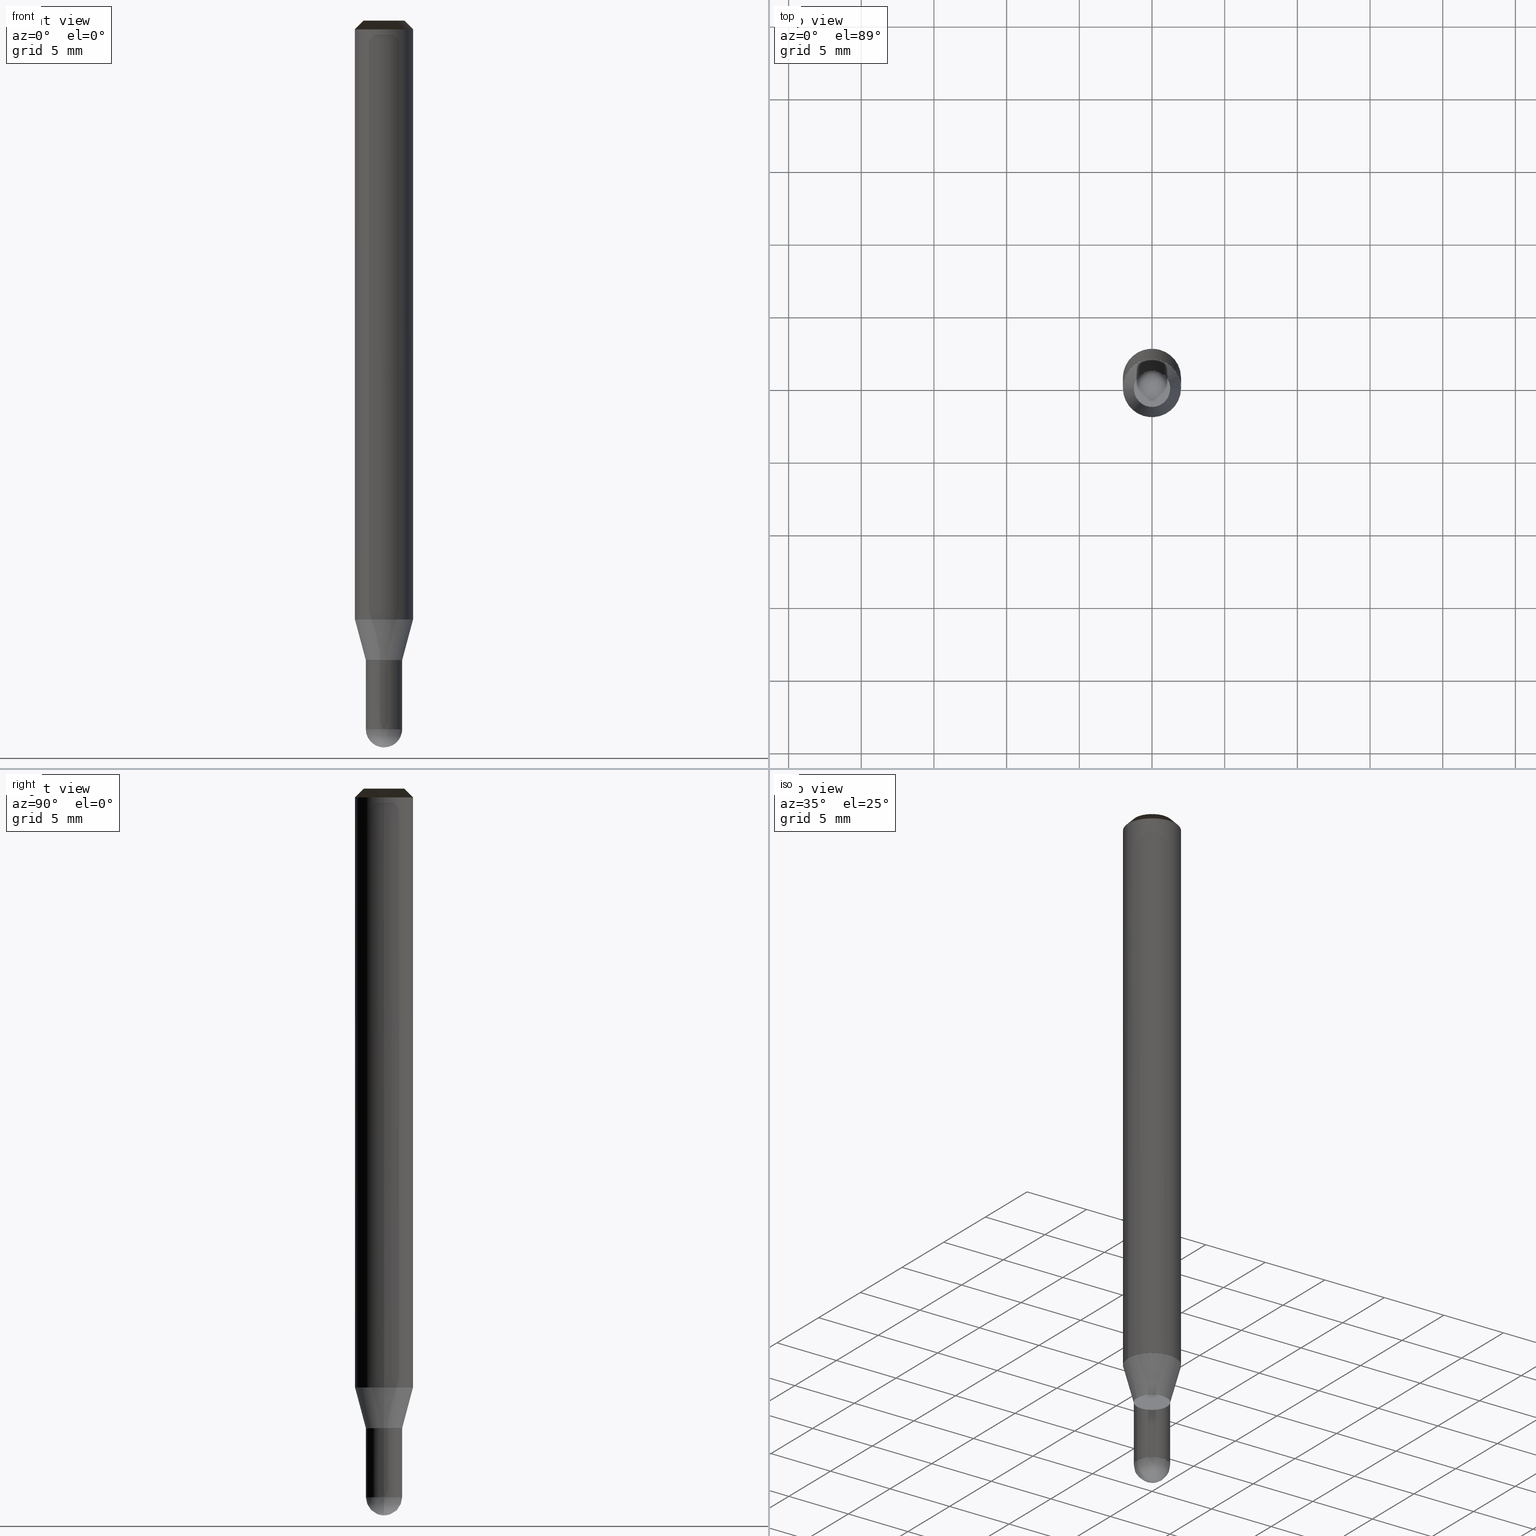
[diagram: canonical four-view strip — front | top / right | iso, engineering-drawing reading convention]
A machine part, canonical four-view strip (front | top / right | iso — engineering-drawing reading convention). The complete STEP part file that produces these views, byte-faithful:
ISO-10303-21;
HEADER;
/* Generated by ISBE GmbH (www.isbe.de) */
/* OPTION: using custom schema-name function */

FILE_DESCRIPTION(
/* description */ (''),
/* implementation_level */ '2;1');

FILE_NAME(
/*name*/ 'SHBS-2025-S04-STH',
/*time_stamp*/'2023-9-13T9:11:46',
/*author*/ ('ISBE GmbH'),
/*organization*/ ('ISBE GmbH'),
/*preprocessor_version*/ 'STEP IO v1.0',
/*originating_system*/ '',
/*authorisation*/ '');

FILE_SCHEMA (('AUTOMOTIVE_DESIGN'));
ENDSEC;

DATA;
#10=SHAPE_DEFINITION_REPRESENTATION(#11,#57);
#11=PRODUCT_DEFINITION_SHAPE('Document','',#13);
#12=PRODUCT_DEFINITION_CONTEXT('3D Mechanical Parts',#17,'design');
#13=PRODUCT_DEFINITION('A','First version',#14,#12);
#14=PRODUCT_DEFINITION_FORMATION_WITH_SPECIFIED_SOURCE('A','First version',#19,.MADE.);
#15=PRODUCT_RELATED_PRODUCT_CATEGORY('tool','tool',(#19));
#16=APPLICATION_PROTOCOL_DEFINITION('Draft International Standard', 'automotive_design',1999,#17);
#17=APPLICATION_CONTEXT('data for automotive mechanical design processes');
#18=PRODUCT_CONTEXT('3D Mechanical Parts',#17,'mechanical');
#19=PRODUCT('Document','Document','ISBE converted to STEP',(#18));
#20=(
LENGTH_UNIT()
NAMED_UNIT(*)
SI_UNIT(.MILLI.,.METRE.)
);
#21=(
NAMED_UNIT(*)
PLANE_ANGLE_UNIT()
SI_UNIT($,.RADIAN.)
);
#22=DIMENSIONAL_EXPONENTS(0.,0.,0.,0.,0.,0.,0.);
#23=PLANE_ANGLE_MEASURE_WITH_UNIT(PLANE_ANGLE_MEASURE(0.01745329252),#21);
#24=(
CONVERSION_BASED_UNIT('DEGREES',#23)
NAMED_UNIT(#22)
PLANE_ANGLE_UNIT()
);
#25=(
NAMED_UNIT(*)
SI_UNIT($,.STERADIAN.)
SOLID_ANGLE_UNIT()
);
#26=UNCERTAINTY_MEASURE_WITH_UNIT(LENGTH_MEASURE(0.001),#20, 'DISTANCE_ACCURACY_VALUE', 'Maximum model space distance between geometric entities at asserted connectivities');
#27=(
GEOMETRIC_REPRESENTATION_CONTEXT(3)
GLOBAL_UNCERTAINTY_ASSIGNED_CONTEXT((#26))
GLOBAL_UNIT_ASSIGNED_CONTEXT((#25,#24,#20))
REPRESENTATION_CONTEXT('ID1','3D')
);
#28=CARTESIAN_POINT('',(0.0,0.0,0.0));
#29=DIRECTION('',(1.0,0.0,0.0));
#30=DIRECTION('',(0.0,0.0,1.0));
#31=AXIS2_PLACEMENT_3D('',#28,#30,#29);
#32=CARTESIAN_POINT('',(0.0,0.0,0.0));
#33=DIRECTION('',(1.0,0.0,0.0));
#34=DIRECTION('',(0.0,0.0,1.0));
#35=AXIS2_PLACEMENT_3D('',#32,#34,#33);
#36=CARTESIAN_POINT('',(0.0,0.0,0.0));
#37=DIRECTION('',(1.0,0.0,0.0));
#38=DIRECTION('',(0.0,0.0,1.0));
#39=AXIS2_PLACEMENT_3D('',#36,#38,#37);
#40=CARTESIAN_POINT('',(0.0,0.0,0.0));
#41=DIRECTION('',(0.0,0.0,1.0));
#42=DIRECTION('',(1.0,0.0,0.0));
#43=AXIS2_PLACEMENT_3D('MCS',#40,#42,#41);
#44=CARTESIAN_POINT('',(0.0,0.0,41.2));
#45=DIRECTION('',(0.0,0.0,1.0));
#46=DIRECTION('',(1.0,0.0,0.0));
#47=AXIS2_PLACEMENT_3D('PCS',#44,#46,#45);
#48=CARTESIAN_POINT('',(0.0,0.0,-8.8));
#49=DIRECTION('',(0.0,0.0,1.0));
#50=DIRECTION('',(1.0,0.0,0.0));
#51=AXIS2_PLACEMENT_3D('CIP',#48,#50,#49);
#52=CARTESIAN_POINT('',(0.0,-1.25,-8.8));
#53=DIRECTION('',(0.0,0.0,1.0));
#54=DIRECTION('',(1.0,0.0,0.0));
#55=AXIS2_PLACEMENT_3D('CRP',#52,#54,#53);
#57=SHAPE_REPRESENTATION('Document',(#31,#35,#39,#43,#47,#51,#55),#27);
#58=DIRECTION('',(1.0,0.0,0.0));
#59=DIRECTION('',(0.0,0.0,1.0));
#60=CARTESIAN_POINT('',(-0.012499363362,-0.0001261568,-8.799799626166));
#61=CARTESIAN_POINT('',(-0.012107400964,-0.038191265437,-8.799357770251));
#62=CARTESIAN_POINT('',(-0.011614322424,-0.079241145974,-8.797431740938));
#63=CARTESIAN_POINT('',(-0.010986776324,-0.119524890072,-8.794223891186));
#64=CARTESIAN_POINT('',(-0.010149773074,-0.159523886479,-8.789737517279));
#65=CARTESIAN_POINT('',(-0.009033652557,-0.19929523519,-8.783977229268));
#66=CARTESIAN_POINT('',(-0.007570877574,-0.238828317283,-8.776948946239));
#67=CARTESIAN_POINT('',(-0.005695912149,-0.278092841576,-8.768659890227));
#68=CARTESIAN_POINT('',(-0.003345459357,-0.317050580043,-8.759118578799));
#69=CARTESIAN_POINT('',(-0.000458773483,-0.355659187397,-8.748334816296));
#70=CARTESIAN_POINT('',(0.003022010372,-0.393873679457,-8.736319683763));
#71=CARTESIAN_POINT('',(0.007151545551,-0.43164707855,-8.723085527562));
#72=CARTESIAN_POINT('',(0.011980948327,-0.468930727414,-8.708645946683));
#73=CARTESIAN_POINT('',(0.017557480995,-0.505674464794,-8.69301577877));
#74=CARTESIAN_POINT('',(0.023924246006,-0.541826746065,-8.676211084878));
#75=CARTESIAN_POINT('',(0.031119893226,-0.57733474824,-8.658249132966));
#76=CARTESIAN_POINT('',(0.03917834234,-0.612144479269,-8.639148380154));
#77=CARTESIAN_POINT('',(0.048128522407,-0.646200902259,-8.618928453757));
#78=CARTESIAN_POINT('',(0.057994130642,-0.679448080428,-8.597610131115));
#79=CARTESIAN_POINT('',(0.06879341247,-0.711829345865,-8.575215318246));
#80=CARTESIAN_POINT('',(0.080538964997,-0.743287493546,-8.551767027335));
#81=CARTESIAN_POINT('',(0.093237565972,-0.773765000913,-8.527289353085));
#82=CARTESIAN_POINT('',(0.10689003033,-0.803204272537,-8.501807447961));
#83=CARTESIAN_POINT('',(0.121491096326,-0.831547908736,-8.475347496344));
#84=CARTESIAN_POINT('',(0.13702934318,-0.858738996512,-8.447936687622));
#85=CARTESIAN_POINT('',(0.153487142021,-0.884721420681,-8.419603188254));
#86=CARTESIAN_POINT('',(0.170840641774,-0.909440192706,-8.390376112827));
#87=CARTESIAN_POINT('',(0.189059791388,-0.932841794344,-8.360285494135));
#88=CARTESIAN_POINT('',(0.208108399618,-0.954874532942,-8.329362252323));
#89=CARTESIAN_POINT('',(0.227944233261,-0.975488904898,-8.297638163114));
#90=CARTESIAN_POINT('',(0.248519154464,-0.994637963598,-8.265145825153));
#91=CARTESIAN_POINT('',(0.269779297384,-1.012277687948,-8.231918626513));
#92=CARTESIAN_POINT('',(0.291665284127,-1.028367347442,-8.197990710388));
#93=CARTESIAN_POINT('',(0.314112479499,-1.042869859674,-8.163396940005));
#94=CARTESIAN_POINT('',(0.33705128373,-1.055752136089,-8.128172862801));
#95=CARTESIAN_POINT('',(0.360407461921,-1.066985411847,-8.092354673897));
#96=CARTESIAN_POINT('',(0.384102508544,-1.076545555677,-8.055979178903));
#97=CARTESIAN_POINT('',(0.408054044933,-1.084413355773,-8.019083756099));
#98=CARTESIAN_POINT('',(0.432176247316,-1.090574777919,-7.981706318027));
#99=CARTESIAN_POINT('',(0.45638030253,-1.095021192282,-7.94388527253));
#100=CARTESIAN_POINT('',(0.480574888235,-1.097749565586,-7.905659483289));
#101=CARTESIAN_POINT('',(0.504666674089,-1.0987626157,-7.867068229887));
#102=CARTESIAN_POINT('',(0.528560840073,-1.098068926065,-7.828151167445));
#103=CARTESIAN_POINT('',(0.552161607883,-1.095683017782,-7.788948285877));
#104=CARTESIAN_POINT('',(0.575372781115,-1.091625377638,-7.749499868792));
#105=CARTESIAN_POINT('',(0.598098289803,-1.085922440824,-7.709846452106));
#106=CARTESIAN_POINT('',(0.620242734761,-1.078606527597,-7.670028782385));
#107=CARTESIAN_POINT('',(0.641711927169,-1.069715733655,-7.630087774976));
#108=CARTESIAN_POINT('',(0.662413418788,-1.059293774501,-7.590064471965));
#109=CARTESIAN_POINT('',(0.682257018342,-1.047389784619,-7.55));
#110=CARTESIAN_POINT('',(0.720090782918,-1.021748141352,-7.470833333333));
#111=CARTESIAN_POINT('',(0.756961866717,-0.994740535183,-7.391666666667));
#112=CARTESIAN_POINT('',(0.792820977226,-0.966403072259,-7.3125));
#113=CARTESIAN_POINT('',(0.827620174827,-0.936773636595,-7.233333333333));
#114=CARTESIAN_POINT('',(0.861312936889,-0.905891839431,-7.154166666667));
#115=CARTESIAN_POINT('',(0.893854219961,-0.873798966272,-7.075));
#116=CARTESIAN_POINT('',(0.925200519988,-0.840537921699,-6.995833333333));
#117=CARTESIAN_POINT('',(0.955309930476,-0.806153172005,-6.916666666667));
#118=CARTESIAN_POINT('',(0.984142198514,-0.770690685752,-6.8375));
#119=CARTESIAN_POINT('',(1.011658778586,-0.734197872314,-6.758333333333));
#120=CARTESIAN_POINT('',(1.037822884104,-0.696723518499,-6.679166666667));
#121=CARTESIAN_POINT('',(1.062599536589,-0.658317723323,-6.6));
#122=CARTESIAN_POINT('',(1.085955612429,-0.619031831035,-6.520833333333));
#123=CARTESIAN_POINT('',(1.107859887164,-0.578918362477,-6.441666666667));
#124=CARTESIAN_POINT('',(1.128283077232,-0.538030944865,-6.3625));
#125=CARTESIAN_POINT('',(1.147197879112,-0.496424240102,-6.283333333333));
#126=CARTESIAN_POINT('',(1.164579005833,-0.454153871693,-6.204166666667));
#127=CARTESIAN_POINT('',(1.180403220772,-0.411276350391,-6.125));
#128=CARTESIAN_POINT('',(1.194649368726,-0.367848998642,-6.045833333333));
#129=CARTESIAN_POINT('',(1.20729840419,-0.323929873954,-5.966666666667));
#130=CARTESIAN_POINT('',(1.218333416819,-0.279577691283,-5.8875));
#131=CARTESIAN_POINT('',(1.227739654035,-0.23485174453,-5.808333333333));
#132=CARTESIAN_POINT('',(1.235504540754,-0.189811827282,-5.729166666667));
#133=CARTESIAN_POINT('',(1.24161769619,-0.144518152866,-5.65));
#134=CARTESIAN_POINT('',(1.246070947739,-0.099031273856,-5.570833333333));
#135=CARTESIAN_POINT('',(1.248858341901,-0.053412001117,-5.491666666667));
#136=CARTESIAN_POINT('',(1.249976152244,-0.00772132251,-5.4125));
#137=CARTESIAN_POINT('',(1.249422884379,0.03797967864,-5.333333333333));
#138=CARTESIAN_POINT('',(1.247199277964,0.083629905211,-5.254166666667));
#139=CARTESIAN_POINT('',(1.243308305712,0.129168327959,-5.175));
#140=CARTESIAN_POINT('',(1.237755169417,0.174534067111,-5.095833333333));
#141=CARTESIAN_POINT('',(1.230547293,0.21966647375,-5.016666666667));
#142=CARTESIAN_POINT('',(1.221694312587,0.2645052109,-4.9375));
#143=CARTESIAN_POINT('',(1.21120806362,0.30899033419,-4.858333333333));
#144=CARTESIAN_POINT('',(1.199102565041,0.353062371987,-4.779166666667));
#145=CARTESIAN_POINT('',(1.185394000546,0.396662404911,-4.7));
#146=CARTESIAN_POINT('',(1.170100696952,0.439732144597,-4.620833333333));
#147=CARTESIAN_POINT('',(1.153243099694,0.482214011625,-4.541666666667));
#148=CARTESIAN_POINT('',(1.134843745493,0.524051212493,-4.4625));
#149=CARTESIAN_POINT('',(1.114927232226,0.565187815546,-4.383333333333));
#150=CARTESIAN_POINT('',(1.093520186041,0.60556882575,-4.304166666667));
#151=CARTESIAN_POINT('',(1.070651225764,0.645140258215,-4.225));
#152=CARTESIAN_POINT('',(1.046350924635,0.683849210364,-4.145833333333));
#153=CARTESIAN_POINT('',(1.020651769436,0.721643932662,-4.066666666667));
#154=CARTESIAN_POINT('',(0.993588117062,0.758473897794,-3.9875));
#155=CARTESIAN_POINT('',(0.965196148586,0.794289868219,-3.908333333333));
#156=CARTESIAN_POINT('',(0.935513820892,0.829043961995,-3.829166666667));
#157=CARTESIAN_POINT('',(0.904580815931,0.862689716787,-3.75));
#158=CARTESIAN_POINT('',(0.872438487667,0.895182151987,-3.670833333333));
#159=CARTESIAN_POINT('',(0.839129806796,0.926477828847,-3.591666666667));
#160=CARTESIAN_POINT('',(0.804699303297,0.95653490855,-3.5125));
#161=CARTESIAN_POINT('',(0.769193006897,0.985313208143,-3.433333333333));
#162=CARTESIAN_POINT('',(0.732658385542,1.012774254261,-3.354166666667));
#163=CARTESIAN_POINT('',(0.695144281932,1.03888133456,-3.275));
#164=CARTESIAN_POINT('',(0.656700848222,1.063599546796,-3.195833333333));
#165=CARTESIAN_POINT('',(0.617379478983,1.086895845484,-3.116666666667));
#166=CARTESIAN_POINT('',(0.577232742482,1.108739086082,-3.0375));
#167=CARTESIAN_POINT('',(0.536314310414,1.129100066622,-2.958333333333));
#168=CARTESIAN_POINT('',(0.494678886141,1.147951566751,-2.879166666667));
#169=CARTESIAN_POINT('',(0.452382131567,1.165268384124,-2.8));
#170=CARTESIAN_POINT('',(0.012499363362,0.0001261568,-8.799799626166));
#171=CARTESIAN_POINT('',(0.012107400964,0.038191265437,-8.799357770251));
#172=CARTESIAN_POINT('',(0.011614322424,0.079241145974,-8.797431740938));
#173=CARTESIAN_POINT('',(0.010986776324,0.119524890072,-8.794223891186));
#174=CARTESIAN_POINT('',(0.010149773074,0.159523886479,-8.789737517279));
#175=CARTESIAN_POINT('',(0.009033652557,0.19929523519,-8.783977229268));
#176=CARTESIAN_POINT('',(0.007570877574,0.238828317283,-8.776948946239));
#177=CARTESIAN_POINT('',(0.005695912149,0.278092841576,-8.768659890227));
#178=CARTESIAN_POINT('',(0.003345459357,0.317050580043,-8.759118578799));
#179=CARTESIAN_POINT('',(0.000458773483,0.355659187397,-8.748334816296));
#180=CARTESIAN_POINT('',(-0.003022010372,0.393873679457,-8.736319683763));
#181=CARTESIAN_POINT('',(-0.007151545551,0.43164707855,-8.723085527562));
#182=CARTESIAN_POINT('',(-0.011980948327,0.468930727414,-8.708645946683));
#183=CARTESIAN_POINT('',(-0.017557480995,0.505674464794,-8.69301577877));
#184=CARTESIAN_POINT('',(-0.023924246006,0.541826746065,-8.676211084878));
#185=CARTESIAN_POINT('',(-0.031119893226,0.57733474824,-8.658249132966));
#186=CARTESIAN_POINT('',(-0.03917834234,0.612144479269,-8.639148380154));
#187=CARTESIAN_POINT('',(-0.048128522407,0.646200902259,-8.618928453757));
#188=CARTESIAN_POINT('',(-0.057994130642,0.679448080428,-8.597610131115));
#189=CARTESIAN_POINT('',(-0.06879341247,0.711829345865,-8.575215318246));
#190=CARTESIAN_POINT('',(-0.080538964997,0.743287493546,-8.551767027335));
#191=CARTESIAN_POINT('',(-0.093237565972,0.773765000913,-8.527289353085));
#192=CARTESIAN_POINT('',(-0.10689003033,0.803204272537,-8.501807447961));
#193=CARTESIAN_POINT('',(-0.121491096326,0.831547908736,-8.475347496344));
#194=CARTESIAN_POINT('',(-0.13702934318,0.858738996512,-8.447936687622));
#195=CARTESIAN_POINT('',(-0.153487142021,0.884721420681,-8.419603188254));
#196=CARTESIAN_POINT('',(-0.170840641774,0.909440192706,-8.390376112827));
#197=CARTESIAN_POINT('',(-0.189059791388,0.932841794344,-8.360285494135));
#198=CARTESIAN_POINT('',(-0.208108399618,0.954874532942,-8.329362252323));
#199=CARTESIAN_POINT('',(-0.227944233261,0.975488904898,-8.297638163114));
#200=CARTESIAN_POINT('',(-0.248519154464,0.994637963598,-8.265145825153));
#201=CARTESIAN_POINT('',(-0.269779297384,1.012277687948,-8.231918626513));
#202=CARTESIAN_POINT('',(-0.291665284127,1.028367347442,-8.197990710388));
#203=CARTESIAN_POINT('',(-0.314112479499,1.042869859674,-8.163396940005));
#204=CARTESIAN_POINT('',(-0.33705128373,1.055752136089,-8.128172862801));
#205=CARTESIAN_POINT('',(-0.360407461921,1.066985411847,-8.092354673897));
#206=CARTESIAN_POINT('',(-0.384102508544,1.076545555677,-8.055979178903));
#207=CARTESIAN_POINT('',(-0.408054044933,1.084413355773,-8.019083756099));
#208=CARTESIAN_POINT('',(-0.432176247316,1.090574777919,-7.981706318027));
#209=CARTESIAN_POINT('',(-0.45638030253,1.095021192282,-7.94388527253));
#210=CARTESIAN_POINT('',(-0.480574888235,1.097749565586,-7.905659483289));
#211=CARTESIAN_POINT('',(-0.504666674089,1.0987626157,-7.867068229887));
#212=CARTESIAN_POINT('',(-0.528560840073,1.098068926065,-7.828151167445));
#213=CARTESIAN_POINT('',(-0.552161607883,1.095683017782,-7.788948285877));
#214=CARTESIAN_POINT('',(-0.575372781115,1.091625377638,-7.749499868792));
#215=CARTESIAN_POINT('',(-0.598098289803,1.085922440824,-7.709846452106));
#216=CARTESIAN_POINT('',(-0.620242734761,1.078606527597,-7.670028782385));
#217=CARTESIAN_POINT('',(-0.641711927169,1.069715733655,-7.630087774976));
#218=CARTESIAN_POINT('',(-0.662413418788,1.059293774501,-7.590064471965));
#219=CARTESIAN_POINT('',(-0.682257018342,1.047389784619,-7.55));
#220=CARTESIAN_POINT('',(-0.720090782918,1.021748141352,-7.470833333333));
#221=CARTESIAN_POINT('',(-0.756961866717,0.994740535183,-7.391666666667));
#222=CARTESIAN_POINT('',(-0.792820977226,0.966403072259,-7.3125));
#223=CARTESIAN_POINT('',(-0.827620174827,0.936773636595,-7.233333333333));
#224=CARTESIAN_POINT('',(-0.861312936889,0.905891839431,-7.154166666667));
#225=CARTESIAN_POINT('',(-0.893854219961,0.873798966272,-7.075));
#226=CARTESIAN_POINT('',(-0.925200519988,0.840537921699,-6.995833333333));
#227=CARTESIAN_POINT('',(-0.955309930476,0.806153172005,-6.916666666667));
#228=CARTESIAN_POINT('',(-0.984142198514,0.770690685752,-6.8375));
#229=CARTESIAN_POINT('',(-1.011658778586,0.734197872314,-6.758333333333));
#230=CARTESIAN_POINT('',(-1.037822884104,0.696723518499,-6.679166666667));
#231=CARTESIAN_POINT('',(-1.062599536589,0.658317723323,-6.6));
#232=CARTESIAN_POINT('',(-1.085955612429,0.619031831035,-6.520833333333));
#233=CARTESIAN_POINT('',(-1.107859887164,0.578918362477,-6.441666666667));
#234=CARTESIAN_POINT('',(-1.128283077232,0.538030944865,-6.3625));
#235=CARTESIAN_POINT('',(-1.147197879112,0.496424240102,-6.283333333333));
#236=CARTESIAN_POINT('',(-1.164579005833,0.454153871693,-6.204166666667));
#237=CARTESIAN_POINT('',(-1.180403220772,0.411276350391,-6.125));
#238=CARTESIAN_POINT('',(-1.194649368726,0.367848998642,-6.045833333333));
#239=CARTESIAN_POINT('',(-1.20729840419,0.323929873954,-5.966666666667));
#240=CARTESIAN_POINT('',(-1.218333416819,0.279577691283,-5.8875));
#241=CARTESIAN_POINT('',(-1.227739654035,0.23485174453,-5.808333333333));
#242=CARTESIAN_POINT('',(-1.235504540754,0.189811827282,-5.729166666667));
#243=CARTESIAN_POINT('',(-1.24161769619,0.144518152866,-5.65));
#244=CARTESIAN_POINT('',(-1.246070947739,0.099031273856,-5.570833333333));
#245=CARTESIAN_POINT('',(-1.248858341901,0.053412001117,-5.491666666667));
#246=CARTESIAN_POINT('',(-1.249976152244,0.00772132251,-5.4125));
#247=CARTESIAN_POINT('',(-1.249422884379,-0.03797967864,-5.333333333333));
#248=CARTESIAN_POINT('',(-1.247199277964,-0.083629905211,-5.254166666667));
#249=CARTESIAN_POINT('',(-1.243308305712,-0.129168327959,-5.175));
#250=CARTESIAN_POINT('',(-1.237755169417,-0.174534067111,-5.095833333333));
#251=CARTESIAN_POINT('',(-1.230547293,-0.21966647375,-5.016666666667));
#252=CARTESIAN_POINT('',(-1.221694312587,-0.2645052109,-4.9375));
#253=CARTESIAN_POINT('',(-1.21120806362,-0.30899033419,-4.858333333333));
#254=CARTESIAN_POINT('',(-1.199102565041,-0.353062371987,-4.779166666667));
#255=CARTESIAN_POINT('',(-1.185394000546,-0.396662404911,-4.7));
#256=CARTESIAN_POINT('',(-1.170100696952,-0.439732144597,-4.620833333333));
#257=CARTESIAN_POINT('',(-1.153243099694,-0.482214011625,-4.541666666667));
#258=CARTESIAN_POINT('',(-1.134843745493,-0.524051212493,-4.4625));
#259=CARTESIAN_POINT('',(-1.114927232226,-0.565187815546,-4.383333333333));
#260=CARTESIAN_POINT('',(-1.093520186041,-0.60556882575,-4.304166666667));
#261=CARTESIAN_POINT('',(-1.070651225764,-0.645140258215,-4.225));
#262=CARTESIAN_POINT('',(-1.046350924635,-0.683849210364,-4.145833333333));
#263=CARTESIAN_POINT('',(-1.020651769436,-0.721643932662,-4.066666666667));
#264=CARTESIAN_POINT('',(-0.993588117062,-0.758473897794,-3.9875));
#265=CARTESIAN_POINT('',(-0.965196148586,-0.794289868219,-3.908333333333));
#266=CARTESIAN_POINT('',(-0.935513820892,-0.829043961995,-3.829166666667));
#267=CARTESIAN_POINT('',(-0.904580815931,-0.862689716787,-3.75));
#268=CARTESIAN_POINT('',(-0.872438487667,-0.895182151987,-3.670833333333));
#269=CARTESIAN_POINT('',(-0.839129806796,-0.926477828847,-3.591666666667));
#270=CARTESIAN_POINT('',(-0.804699303297,-0.95653490855,-3.5125));
#271=CARTESIAN_POINT('',(-0.769193006897,-0.985313208143,-3.433333333333));
#272=CARTESIAN_POINT('',(-0.732658385542,-1.012774254261,-3.354166666667));
#273=CARTESIAN_POINT('',(-0.695144281932,-1.03888133456,-3.275));
#274=CARTESIAN_POINT('',(-0.656700848222,-1.063599546796,-3.195833333333));
#275=CARTESIAN_POINT('',(-0.617379478983,-1.086895845484,-3.116666666667));
#276=CARTESIAN_POINT('',(-0.577232742482,-1.108739086082,-3.0375));
#277=CARTESIAN_POINT('',(-0.536314310414,-1.129100066622,-2.958333333333));
#278=CARTESIAN_POINT('',(-0.494678886141,-1.147951566751,-2.879166666667));
#279=CARTESIAN_POINT('',(-0.452382131567,-1.165268384124,-2.8));
#280=CARTESIAN_POINT('',(0.0,0.0,-8.8));
#281=CARTESIAN_POINT('',(1.25,0.0,-8.8));
#282=CARTESIAN_POINT('',(1.25,1.25,-8.8));
#283=CARTESIAN_POINT('',(0.0,1.25,-8.8));
#284=CARTESIAN_POINT('',(-1.25,1.25,-8.8));
#285=CARTESIAN_POINT('',(-1.25,0.0,-8.8));
#286=CARTESIAN_POINT('',(1.25,0.0,-7.55));
#287=CARTESIAN_POINT('',(1.25,1.25,-7.55));
#288=CARTESIAN_POINT('',(0.0,1.25,-7.55));
#289=CARTESIAN_POINT('',(-1.25,1.25,-7.55));
#290=CARTESIAN_POINT('',(-1.25,0.0,-7.55));
#291=CARTESIAN_POINT('',(1.25,0.0,-2.8));
#292=CARTESIAN_POINT('',(1.25,1.25,-2.8));
#293=CARTESIAN_POINT('',(0.0,1.25,-2.8));
#294=CARTESIAN_POINT('',(-1.25,1.25,-2.8));
#295=CARTESIAN_POINT('',(-1.25,0.0,-2.8));
#296=CARTESIAN_POINT('',(0.0,0.0,-2.8));
#297=CARTESIAN_POINT('',(-1.25,-1.25,-8.8));
#298=CARTESIAN_POINT('',(0.0,-1.25,-8.8));
#299=CARTESIAN_POINT('',(1.25,-1.25,-8.8));
#300=CARTESIAN_POINT('',(-1.25,-1.25,-7.55));
#301=CARTESIAN_POINT('',(0.0,-1.25,-7.55));
#302=CARTESIAN_POINT('',(1.25,-1.25,-7.55));
#303=CARTESIAN_POINT('',(-1.25,-1.25,-2.8));
#304=CARTESIAN_POINT('',(0.0,-1.25,-2.8));
#305=CARTESIAN_POINT('',(1.25,-1.25,-2.8));
#306=CARTESIAN_POINT('',(1.25,0.0,-2.799038105677));
#307=CARTESIAN_POINT('',(1.25,1.25,-2.799038105677));
#308=CARTESIAN_POINT('',(0.0,1.25,-2.799038105677));
#309=CARTESIAN_POINT('',(-1.25,1.25,-2.799038105677));
#310=CARTESIAN_POINT('',(-1.25,0.0,-2.799038105677));
#311=CARTESIAN_POINT('',(2.0,0.0,0.0));
#312=CARTESIAN_POINT('',(2.0,2.0,0.0));
#313=CARTESIAN_POINT('',(0.0,2.0,0.0));
#314=CARTESIAN_POINT('',(-2.0,2.0,0.0));
#315=CARTESIAN_POINT('',(-2.0,0.0,0.0));
#316=CARTESIAN_POINT('',(2.0,0.0,40.6));
#317=CARTESIAN_POINT('',(2.0,2.0,40.6));
#318=CARTESIAN_POINT('',(0.0,2.0,40.6));
#319=CARTESIAN_POINT('',(-2.0,2.0,40.6));
#320=CARTESIAN_POINT('',(-2.0,0.0,40.6));
#321=CARTESIAN_POINT('',(1.4,0.0,41.2));
#322=CARTESIAN_POINT('',(1.4,1.4,41.2));
#323=CARTESIAN_POINT('',(0.0,1.4,41.2));
#324=CARTESIAN_POINT('',(-1.4,1.4,41.2));
#325=CARTESIAN_POINT('',(-1.4,0.0,41.2));
#326=CARTESIAN_POINT('',(0.0,0.0,41.2));
#327=CARTESIAN_POINT('',(-1.25,-1.25,-2.799038105677));
#328=CARTESIAN_POINT('',(0.0,-1.25,-2.799038105677));
#329=CARTESIAN_POINT('',(1.25,-1.25,-2.799038105677));
#330=CARTESIAN_POINT('',(-2.0,-2.0,0.0));
#331=CARTESIAN_POINT('',(0.0,-2.0,0.0));
#332=CARTESIAN_POINT('',(2.0,-2.0,0.0));
#333=CARTESIAN_POINT('',(-2.0,-2.0,40.6));
#334=CARTESIAN_POINT('',(0.0,-2.0,40.6));
#335=CARTESIAN_POINT('',(2.0,-2.0,40.6));
#336=CARTESIAN_POINT('',(-1.4,-1.4,41.2));
#337=CARTESIAN_POINT('',(0.0,-1.4,41.2));
#338=CARTESIAN_POINT('',(1.4,-1.4,41.2));
#339=(
BOUNDED_CURVE()
B_SPLINE_CURVE(1,(#60,#61,#62,#63,#64,#65,#66,#67,#68,#69,#70,#71,#72,#73,#74,#75,#76,#77,#78,#79,#80,#81,#82,#83,#84,#85,#86,#87,#88,#89,#90,#91,#92,#93,#94,#95,#96,#97,#98,#99,#100,#101,#102,#103,#104,#105,#106,#107,#108,#109,#110,#111,#112,#113,#114,#115,#116,#117,#118,#119,#120,#121,#122,#123,#124,#125,#126,#127,#128,#129,#130,#131,#132,#133,#134,#135,#136,#137,#138,#139,#140,#141,#142,#143,#144,#145,#146,#147,#148,#149,#150,#151,#152,#153,#154,#155,#156,#157,#158,#159,#160,#161,#162,#163,#164,#165,#166,#167,#168,#169),.UNSPECIFIED.,.F.,.F.)
B_SPLINE_CURVE_WITH_KNOTS((2,1,1,1,1,1,1,1,1,1,1,1,1,1,1,1,1,1,1,1,1,1,1,1,1,1,1,1,1,1,1,1,1,1,1,1,1,1,1,1,1,1,1,1,1,1,1,1,1,1,1,1,1,1,1,1,1,1,1,1,1,1,1,1,1,1,1,1,1,1,1,1,1,1,1,1,1,1,1,1,1,1,1,1,1,1,1,1,1,1,1,1,1,1,1,1,1,1,1,1,1,1,1,1,1,1,1,1,1,2),
(0.0,0.005030631866,0.010461432364,0.015802129996,0.021121998679,0.026434376651,0.031743818916,0.037052481285,0.042361702515,0.047672535758,0.05298596521,0.058303006693,0.063624757901,0.06895242346,0.074287325478,0.079630904641,0.084984714383,0.090350409635,0.095729731112,0.10112448587,0.106536524792,0.111967717626,0.117419926175,0.122894976284,0.128394629231,0.133920553154,0.139474295099,0.145057254255,0.15067065689,0.15631553343,0.161992698092,0.167702731362,0.173445965575,0.179222473759,0.185032061842,0.190874264257,0.196748342918,0.202653289496,0.20858783087,0.2145504376,0.220539335247,0.226552518328,0.232587766685,0.23864266405,0.244714618552,0.250800884937,0.256898588247,0.263004748728,0.269116307709,0.275230154217,0.287309651647,0.299389149077,0.311468646506,0.323548143936,0.335627641366,0.347707138796,0.359786636225,0.371866133655,0.383945631085,0.396025128514,0.408104625944,0.420184123374,0.432263620803,0.444343118233,0.456422615663,0.468502113093,0.480581610522,0.492661107952,0.504740605382,0.516820102811,0.528899600241,0.540979097671,0.553058595101,0.56513809253,0.57721758996,0.58929708739,0.601376584819,0.613456082249,0.625535579679,0.637615077109,0.649694574538,0.661774071968,0.673853569398,0.685933066827,0.698012564257,0.710092061687,0.722171559117,0.734251056546,0.746330553976,0.758410051406,0.770489548835,0.782569046265,0.794648543695,0.806728041125,0.818807538554,0.830887035984,0.842966533414,0.855046030843,0.867125528273,0.879205025703,0.891284523133,0.903364020562,0.915443517992,0.927523015422,0.939602512851,0.951682010281,0.963761507711,0.975841005141,0.98792050257,1.0),.UNSPECIFIED.)
CURVE()
GEOMETRIC_REPRESENTATION_ITEM()
RATIONAL_B_SPLINE_CURVE((1.0,1.0,1.0,1.0,1.0,1.0,1.0,1.0,1.0,1.0,1.0,1.0,1.0,1.0,1.0,1.0,1.0,1.0,1.0,1.0,1.0,1.0,1.0,1.0,1.0,1.0,1.0,1.0,1.0,1.0,1.0,1.0,1.0,1.0,1.0,1.0,1.0,1.0,1.0,1.0,1.0,1.0,1.0,1.0,1.0,1.0,1.0,1.0,1.0,1.0,1.0,1.0,1.0,1.0,1.0,1.0,1.0,1.0,1.0,1.0,1.0,1.0,1.0,1.0,1.0,1.0,1.0,1.0,1.0,1.0,1.0,1.0,1.0,1.0,1.0,1.0,1.0,1.0,1.0,1.0,1.0,1.0,1.0,1.0,1.0,1.0,1.0,1.0,1.0,1.0,1.0,1.0,1.0,1.0,1.0,1.0,1.0,1.0,1.0,1.0,1.0,1.0,1.0,1.0,1.0,1.0,1.0,1.0,1.0,1.0))
REPRESENTATION_ITEM('')
);
#340=(
BOUNDED_CURVE()
B_SPLINE_CURVE(1,(#170,#171,#172,#173,#174,#175,#176,#177,#178,#179,#180,#181,#182,#183,#184,#185,#186,#187,#188,#189,#190,#191,#192,#193,#194,#195,#196,#197,#198,#199,#200,#201,#202,#203,#204,#205,#206,#207,#208,#209,#210,#211,#212,#213,#214,#215,#216,#217,#218,#219,#220,#221,#222,#223,#224,#225,#226,#227,#228,#229,#230,#231,#232,#233,#234,#235,#236,#237,#238,#239,#240,#241,#242,#243,#244,#245,#246,#247,#248,#249,#250,#251,#252,#253,#254,#255,#256,#257,#258,#259,#260,#261,#262,#263,#264,#265,#266,#267,#268,#269,#270,#271,#272,#273,#274,#275,#276,#277,#278,#279),.UNSPECIFIED.,.F.,.F.)
B_SPLINE_CURVE_WITH_KNOTS((2,1,1,1,1,1,1,1,1,1,1,1,1,1,1,1,1,1,1,1,1,1,1,1,1,1,1,1,1,1,1,1,1,1,1,1,1,1,1,1,1,1,1,1,1,1,1,1,1,1,1,1,1,1,1,1,1,1,1,1,1,1,1,1,1,1,1,1,1,1,1,1,1,1,1,1,1,1,1,1,1,1,1,1,1,1,1,1,1,1,1,1,1,1,1,1,1,1,1,1,1,1,1,1,1,1,1,1,1,2),
(0.0,0.005030631866,0.010461432364,0.015802129996,0.021121998679,0.026434376651,0.031743818916,0.037052481285,0.042361702515,0.047672535758,0.05298596521,0.058303006693,0.063624757901,0.06895242346,0.074287325478,0.079630904641,0.084984714383,0.090350409635,0.095729731112,0.10112448587,0.106536524792,0.111967717626,0.117419926175,0.122894976284,0.128394629231,0.133920553154,0.139474295099,0.145057254255,0.15067065689,0.15631553343,0.161992698092,0.167702731362,0.173445965575,0.179222473759,0.185032061842,0.190874264257,0.196748342918,0.202653289496,0.20858783087,0.2145504376,0.220539335247,0.226552518328,0.232587766685,0.23864266405,0.244714618552,0.250800884937,0.256898588247,0.263004748728,0.269116307709,0.275230154217,0.287309651647,0.299389149077,0.311468646506,0.323548143936,0.335627641366,0.347707138796,0.359786636225,0.371866133655,0.383945631085,0.396025128514,0.408104625944,0.420184123374,0.432263620803,0.444343118233,0.456422615663,0.468502113093,0.480581610522,0.492661107952,0.504740605382,0.516820102811,0.528899600241,0.540979097671,0.553058595101,0.56513809253,0.57721758996,0.58929708739,0.601376584819,0.613456082249,0.625535579679,0.637615077109,0.649694574538,0.661774071968,0.673853569398,0.685933066827,0.698012564257,0.710092061687,0.722171559117,0.734251056546,0.746330553976,0.758410051406,0.770489548835,0.782569046265,0.794648543695,0.806728041125,0.818807538554,0.830887035984,0.842966533414,0.855046030843,0.867125528273,0.879205025703,0.891284523133,0.903364020562,0.915443517992,0.927523015422,0.939602512851,0.951682010281,0.963761507711,0.975841005141,0.98792050257,1.0),.UNSPECIFIED.)
CURVE()
GEOMETRIC_REPRESENTATION_ITEM()
RATIONAL_B_SPLINE_CURVE((1.0,1.0,1.0,1.0,1.0,1.0,1.0,1.0,1.0,1.0,1.0,1.0,1.0,1.0,1.0,1.0,1.0,1.0,1.0,1.0,1.0,1.0,1.0,1.0,1.0,1.0,1.0,1.0,1.0,1.0,1.0,1.0,1.0,1.0,1.0,1.0,1.0,1.0,1.0,1.0,1.0,1.0,1.0,1.0,1.0,1.0,1.0,1.0,1.0,1.0,1.0,1.0,1.0,1.0,1.0,1.0,1.0,1.0,1.0,1.0,1.0,1.0,1.0,1.0,1.0,1.0,1.0,1.0,1.0,1.0,1.0,1.0,1.0,1.0,1.0,1.0,1.0,1.0,1.0,1.0,1.0,1.0,1.0,1.0,1.0,1.0,1.0,1.0,1.0,1.0,1.0,1.0,1.0,1.0,1.0,1.0,1.0,1.0,1.0,1.0,1.0,1.0,1.0,1.0,1.0,1.0,1.0,1.0,1.0,1.0))
REPRESENTATION_ITEM('')
);
#341=SHAPE_REPRESENTATION_RELATIONSHIP('','',#57,#342);
#342=GEOMETRICALLY_BOUNDED_WIREFRAME_SHAPE_REPRESENTATION('Curves',(#343,#31),#27);
#343=GEOMETRIC_CURVE_SET('CurveSet',(#339,#340));
#344=(
BOUNDED_SURFACE()
B_SPLINE_SURFACE(2,2,(
(#280,#280,#280,#280,#280),
(#281,#282,#283,#284,#285),
(#286,#287,#288,#289,#290)
), .UNSPECIFIED.,.F.,.F.,.F.)
B_SPLINE_SURFACE_WITH_KNOTS((3,3),(3,2,3),(
0.0,1.0),(
0.0,0.5,1.0), .UNSPECIFIED.)
GEOMETRIC_REPRESENTATION_ITEM()
RATIONAL_B_SPLINE_SURFACE(((1.0,0.707106781187,1.0,0.707106781187,1.0),
(0.707106781187,0.5,0.707106781187,0.5,0.707106781187),
(1.0,0.707106781187,1.0,0.707106781187,1.0)
))
REPRESENTATION_ITEM('')
SURFACE()
);
#345=(
BOUNDED_CURVE()
B_SPLINE_CURVE(2,(#286,#287,#288,#289,#290),.UNSPECIFIED.,.F.,.F.)
B_SPLINE_CURVE_WITH_KNOTS((3,2,3),
(0.0,0.5,1.0),.UNSPECIFIED.)
CURVE()
GEOMETRIC_REPRESENTATION_ITEM()
RATIONAL_B_SPLINE_CURVE((1.0,0.707106781187,1.0,0.707106781187,1.0))
REPRESENTATION_ITEM('')
);
#346=(
BOUNDED_CURVE()
B_SPLINE_CURVE(2,(#290,#285,#280),.UNSPECIFIED.,.F.,.F.)
B_SPLINE_CURVE_WITH_KNOTS((3,3),
(0.0,1.0),.UNSPECIFIED.)
CURVE()
GEOMETRIC_REPRESENTATION_ITEM()
RATIONAL_B_SPLINE_CURVE((1.0,0.707106781187,1.0))
REPRESENTATION_ITEM('')
);
#347=(
BOUNDED_CURVE()
B_SPLINE_CURVE(2,(#280,#281,#286),.UNSPECIFIED.,.F.,.F.)
B_SPLINE_CURVE_WITH_KNOTS((3,3),
(0.0,1.0),.UNSPECIFIED.)
CURVE()
GEOMETRIC_REPRESENTATION_ITEM()
RATIONAL_B_SPLINE_CURVE((1.0,0.707106781187,1.0))
REPRESENTATION_ITEM('')
);
#348=VERTEX_POINT('',#280);
#349=VERTEX_POINT('',#286);
#350=VERTEX_POINT('',#290);
#351=EDGE_CURVE('',#349,#350,#345,.T.);
#352=EDGE_CURVE('',#350,#348,#346,.T.);
#353=EDGE_CURVE('',#348,#349,#347,.T.);
#354=ORIENTED_EDGE('',*,*,#351,.T.);
#355=ORIENTED_EDGE('',*,*,#352,.T.);
#356=ORIENTED_EDGE('',*,*,#353,.T.);
#357=EDGE_LOOP('',(#354,#355,#356));
#358=FACE_OUTER_BOUND('',#357,.T.);
#359=ADVANCED_FACE('',(#358),#344,.T.);
#360=(
BOUNDED_SURFACE()
B_SPLINE_SURFACE(1,2,(
(#286,#287,#288,#289,#290),
(#291,#292,#293,#294,#295)
), .UNSPECIFIED.,.F.,.F.,.F.)
B_SPLINE_SURFACE_WITH_KNOTS((2,2),(3,2,3),(
0.0,1.0),(
0.0,0.5,1.0), .UNSPECIFIED.)
GEOMETRIC_REPRESENTATION_ITEM()
RATIONAL_B_SPLINE_SURFACE(((1.0,0.707106781187,1.0,0.707106781187,1.0),
(1.0,0.707106781187,1.0,0.707106781187,1.0)
))
REPRESENTATION_ITEM('')
SURFACE()
);
#361=(
BOUNDED_CURVE()
B_SPLINE_CURVE(2,(#291,#292,#293,#294,#295),.UNSPECIFIED.,.F.,.F.)
B_SPLINE_CURVE_WITH_KNOTS((3,2,3),
(0.0,0.5,1.0),.UNSPECIFIED.)
CURVE()
GEOMETRIC_REPRESENTATION_ITEM()
RATIONAL_B_SPLINE_CURVE((1.0,0.707106781187,1.0,0.707106781187,1.0))
REPRESENTATION_ITEM('')
);
#362=(
BOUNDED_CURVE()
B_SPLINE_CURVE(1,(#295,#290),.UNSPECIFIED.,.F.,.F.)
B_SPLINE_CURVE_WITH_KNOTS((2,2),
(0.0,1.0),.UNSPECIFIED.)
CURVE()
GEOMETRIC_REPRESENTATION_ITEM()
RATIONAL_B_SPLINE_CURVE((1.0,1.0))
REPRESENTATION_ITEM('')
);
#363=(
BOUNDED_CURVE()
B_SPLINE_CURVE(2,(#290,#289,#288,#287,#286),.UNSPECIFIED.,.F.,.F.)
B_SPLINE_CURVE_WITH_KNOTS((3,2,3),
(0.0,0.5,1.0),.UNSPECIFIED.)
CURVE()
GEOMETRIC_REPRESENTATION_ITEM()
RATIONAL_B_SPLINE_CURVE((1.0,0.707106781187,1.0,0.707106781187,1.0))
REPRESENTATION_ITEM('')
);
#364=(
BOUNDED_CURVE()
B_SPLINE_CURVE(1,(#286,#291),.UNSPECIFIED.,.F.,.F.)
B_SPLINE_CURVE_WITH_KNOTS((2,2),
(0.0,1.0),.UNSPECIFIED.)
CURVE()
GEOMETRIC_REPRESENTATION_ITEM()
RATIONAL_B_SPLINE_CURVE((1.0,1.0))
REPRESENTATION_ITEM('')
);
#365=VERTEX_POINT('',#286);
#366=VERTEX_POINT('',#290);
#367=VERTEX_POINT('',#291);
#368=VERTEX_POINT('',#295);
#369=EDGE_CURVE('',#367,#368,#361,.T.);
#370=EDGE_CURVE('',#368,#366,#362,.T.);
#371=EDGE_CURVE('',#366,#365,#363,.T.);
#372=EDGE_CURVE('',#365,#367,#364,.T.);
#373=ORIENTED_EDGE('',*,*,#369,.T.);
#374=ORIENTED_EDGE('',*,*,#370,.T.);
#375=ORIENTED_EDGE('',*,*,#371,.T.);
#376=ORIENTED_EDGE('',*,*,#372,.T.);
#377=EDGE_LOOP('',(#373,#374,#375,#376));
#378=FACE_OUTER_BOUND('',#377,.T.);
#379=ADVANCED_FACE('',(#378),#360,.T.);
#380=(
BOUNDED_SURFACE()
B_SPLINE_SURFACE(1,2,(
(#291,#292,#293,#294,#295),
(#296,#296,#296,#296,#296)
), .UNSPECIFIED.,.F.,.F.,.F.)
B_SPLINE_SURFACE_WITH_KNOTS((2,2),(3,2,3),(
0.0,1.0),(
0.0,0.5,1.0), .UNSPECIFIED.)
GEOMETRIC_REPRESENTATION_ITEM()
RATIONAL_B_SPLINE_SURFACE(((1.0,0.707106781187,1.0,0.707106781187,1.0),
(1.0,0.707106781187,1.0,0.707106781187,1.0)
))
REPRESENTATION_ITEM('')
SURFACE()
);
#381=(
BOUNDED_CURVE()
B_SPLINE_CURVE(1,(#296,#291),.UNSPECIFIED.,.F.,.F.)
B_SPLINE_CURVE_WITH_KNOTS((2,2),
(0.0,1.0),.UNSPECIFIED.)
CURVE()
GEOMETRIC_REPRESENTATION_ITEM()
RATIONAL_B_SPLINE_CURVE((1.0,1.0))
REPRESENTATION_ITEM('')
);
#382=(
BOUNDED_CURVE()
B_SPLINE_CURVE(2,(#291,#292,#293,#294,#295),.UNSPECIFIED.,.F.,.F.)
B_SPLINE_CURVE_WITH_KNOTS((3,2,3),
(0.0,0.5,1.0),.UNSPECIFIED.)
CURVE()
GEOMETRIC_REPRESENTATION_ITEM()
RATIONAL_B_SPLINE_CURVE((1.0,0.707106781187,1.0,0.707106781187,1.0))
REPRESENTATION_ITEM('')
);
#383=(
BOUNDED_CURVE()
B_SPLINE_CURVE(1,(#295,#296),.UNSPECIFIED.,.F.,.F.)
B_SPLINE_CURVE_WITH_KNOTS((2,2),
(0.0,1.0),.UNSPECIFIED.)
CURVE()
GEOMETRIC_REPRESENTATION_ITEM()
RATIONAL_B_SPLINE_CURVE((1.0,1.0))
REPRESENTATION_ITEM('')
);
#384=VERTEX_POINT('',#291);
#385=VERTEX_POINT('',#295);
#386=VERTEX_POINT('',#296);
#387=EDGE_CURVE('',#386,#384,#381,.T.);
#388=EDGE_CURVE('',#384,#385,#382,.T.);
#389=EDGE_CURVE('',#385,#386,#383,.T.);
#390=ORIENTED_EDGE('',*,*,#387,.T.);
#391=ORIENTED_EDGE('',*,*,#388,.T.);
#392=ORIENTED_EDGE('',*,*,#389,.T.);
#393=EDGE_LOOP('',(#390,#391,#392));
#394=FACE_OUTER_BOUND('',#393,.T.);
#395=ADVANCED_FACE('',(#394),#380,.T.);
#396=(
BOUNDED_SURFACE()
B_SPLINE_SURFACE(2,2,(
(#280,#280,#280,#280,#280),
(#285,#297,#298,#299,#281),
(#290,#300,#301,#302,#286)
), .UNSPECIFIED.,.F.,.F.,.F.)
B_SPLINE_SURFACE_WITH_KNOTS((3,3),(3,2,3),(
0.0,1.0),(
0.0,0.5,1.0), .UNSPECIFIED.)
GEOMETRIC_REPRESENTATION_ITEM()
RATIONAL_B_SPLINE_SURFACE(((1.0,0.707106781187,1.0,0.707106781187,1.0),
(0.707106781187,0.5,0.707106781187,0.5,0.707106781187),
(1.0,0.707106781187,1.0,0.707106781187,1.0)
))
REPRESENTATION_ITEM('')
SURFACE()
);
#397=(
BOUNDED_CURVE()
B_SPLINE_CURVE(2,(#290,#285,#280),.UNSPECIFIED.,.F.,.F.)
B_SPLINE_CURVE_WITH_KNOTS((3,3),
(0.0,1.0),.UNSPECIFIED.)
CURVE()
GEOMETRIC_REPRESENTATION_ITEM()
RATIONAL_B_SPLINE_CURVE((1.0,0.707106781187,1.0))
REPRESENTATION_ITEM('')
);
#398=(
BOUNDED_CURVE()
B_SPLINE_CURVE(2,(#280,#281,#286),.UNSPECIFIED.,.F.,.F.)
B_SPLINE_CURVE_WITH_KNOTS((3,3),
(0.0,1.0),.UNSPECIFIED.)
CURVE()
GEOMETRIC_REPRESENTATION_ITEM()
RATIONAL_B_SPLINE_CURVE((1.0,0.707106781187,1.0))
REPRESENTATION_ITEM('')
);
#399=(
BOUNDED_CURVE()
B_SPLINE_CURVE(2,(#286,#302,#301,#300,#290),.UNSPECIFIED.,.F.,.F.)
B_SPLINE_CURVE_WITH_KNOTS((3,2,3),
(0.0,0.5,1.0),.UNSPECIFIED.)
CURVE()
GEOMETRIC_REPRESENTATION_ITEM()
RATIONAL_B_SPLINE_CURVE((1.0,0.707106781187,1.0,0.707106781187,1.0))
REPRESENTATION_ITEM('')
);
#400=VERTEX_POINT('',#280);
#401=VERTEX_POINT('',#286);
#402=VERTEX_POINT('',#290);
#403=EDGE_CURVE('',#402,#400,#397,.T.);
#404=EDGE_CURVE('',#400,#401,#398,.T.);
#405=EDGE_CURVE('',#401,#402,#399,.T.);
#406=ORIENTED_EDGE('',*,*,#403,.T.);
#407=ORIENTED_EDGE('',*,*,#404,.T.);
#408=ORIENTED_EDGE('',*,*,#405,.T.);
#409=EDGE_LOOP('',(#406,#407,#408));
#410=FACE_OUTER_BOUND('',#409,.T.);
#411=ADVANCED_FACE('',(#410),#396,.T.);
#412=(
BOUNDED_SURFACE()
B_SPLINE_SURFACE(1,2,(
(#290,#300,#301,#302,#286),
(#295,#303,#304,#305,#291)
), .UNSPECIFIED.,.F.,.F.,.F.)
B_SPLINE_SURFACE_WITH_KNOTS((2,2),(3,2,3),(
0.0,1.0),(
0.0,0.5,1.0), .UNSPECIFIED.)
GEOMETRIC_REPRESENTATION_ITEM()
RATIONAL_B_SPLINE_SURFACE(((1.0,0.707106781187,1.0,0.707106781187,1.0),
(1.0,0.707106781187,1.0,0.707106781187,1.0)
))
REPRESENTATION_ITEM('')
SURFACE()
);
#413=(
BOUNDED_CURVE()
B_SPLINE_CURVE(1,(#295,#290),.UNSPECIFIED.,.F.,.F.)
B_SPLINE_CURVE_WITH_KNOTS((2,2),
(0.0,1.0),.UNSPECIFIED.)
CURVE()
GEOMETRIC_REPRESENTATION_ITEM()
RATIONAL_B_SPLINE_CURVE((1.0,1.0))
REPRESENTATION_ITEM('')
);
#414=(
BOUNDED_CURVE()
B_SPLINE_CURVE(2,(#290,#300,#301,#302,#286),.UNSPECIFIED.,.F.,.F.)
B_SPLINE_CURVE_WITH_KNOTS((3,2,3),
(0.0,0.5,1.0),.UNSPECIFIED.)
CURVE()
GEOMETRIC_REPRESENTATION_ITEM()
RATIONAL_B_SPLINE_CURVE((1.0,0.707106781187,1.0,0.707106781187,1.0))
REPRESENTATION_ITEM('')
);
#415=(
BOUNDED_CURVE()
B_SPLINE_CURVE(1,(#286,#291),.UNSPECIFIED.,.F.,.F.)
B_SPLINE_CURVE_WITH_KNOTS((2,2),
(0.0,1.0),.UNSPECIFIED.)
CURVE()
GEOMETRIC_REPRESENTATION_ITEM()
RATIONAL_B_SPLINE_CURVE((1.0,1.0))
REPRESENTATION_ITEM('')
);
#416=(
BOUNDED_CURVE()
B_SPLINE_CURVE(2,(#291,#305,#304,#303,#295),.UNSPECIFIED.,.F.,.F.)
B_SPLINE_CURVE_WITH_KNOTS((3,2,3),
(0.0,0.5,1.0),.UNSPECIFIED.)
CURVE()
GEOMETRIC_REPRESENTATION_ITEM()
RATIONAL_B_SPLINE_CURVE((1.0,0.707106781187,1.0,0.707106781187,1.0))
REPRESENTATION_ITEM('')
);
#417=VERTEX_POINT('',#286);
#418=VERTEX_POINT('',#290);
#419=VERTEX_POINT('',#291);
#420=VERTEX_POINT('',#295);
#421=EDGE_CURVE('',#420,#418,#413,.T.);
#422=EDGE_CURVE('',#418,#417,#414,.T.);
#423=EDGE_CURVE('',#417,#419,#415,.T.);
#424=EDGE_CURVE('',#419,#420,#416,.T.);
#425=ORIENTED_EDGE('',*,*,#421,.T.);
#426=ORIENTED_EDGE('',*,*,#422,.T.);
#427=ORIENTED_EDGE('',*,*,#423,.T.);
#428=ORIENTED_EDGE('',*,*,#424,.T.);
#429=EDGE_LOOP('',(#425,#426,#427,#428));
#430=FACE_OUTER_BOUND('',#429,.T.);
#431=ADVANCED_FACE('',(#430),#412,.T.);
#432=(
BOUNDED_SURFACE()
B_SPLINE_SURFACE(1,2,(
(#295,#303,#304,#305,#291),
(#296,#296,#296,#296,#296)
), .UNSPECIFIED.,.F.,.F.,.F.)
B_SPLINE_SURFACE_WITH_KNOTS((2,2),(3,2,3),(
0.0,1.0),(
0.0,0.5,1.0), .UNSPECIFIED.)
GEOMETRIC_REPRESENTATION_ITEM()
RATIONAL_B_SPLINE_SURFACE(((1.0,0.707106781187,1.0,0.707106781187,1.0),
(1.0,0.707106781187,1.0,0.707106781187,1.0)
))
REPRESENTATION_ITEM('')
SURFACE()
);
#433=(
BOUNDED_CURVE()
B_SPLINE_CURVE(1,(#296,#291),.UNSPECIFIED.,.F.,.F.)
B_SPLINE_CURVE_WITH_KNOTS((2,2),
(0.0,1.0),.UNSPECIFIED.)
CURVE()
GEOMETRIC_REPRESENTATION_ITEM()
RATIONAL_B_SPLINE_CURVE((1.0,1.0))
REPRESENTATION_ITEM('')
);
#434=(
BOUNDED_CURVE()
B_SPLINE_CURVE(2,(#291,#305,#304,#303,#295),.UNSPECIFIED.,.F.,.F.)
B_SPLINE_CURVE_WITH_KNOTS((3,2,3),
(0.0,0.5,1.0),.UNSPECIFIED.)
CURVE()
GEOMETRIC_REPRESENTATION_ITEM()
RATIONAL_B_SPLINE_CURVE((1.0,0.707106781187,1.0,0.707106781187,1.0))
REPRESENTATION_ITEM('')
);
#435=(
BOUNDED_CURVE()
B_SPLINE_CURVE(1,(#295,#296),.UNSPECIFIED.,.F.,.F.)
B_SPLINE_CURVE_WITH_KNOTS((2,2),
(0.0,1.0),.UNSPECIFIED.)
CURVE()
GEOMETRIC_REPRESENTATION_ITEM()
RATIONAL_B_SPLINE_CURVE((1.0,1.0))
REPRESENTATION_ITEM('')
);
#436=VERTEX_POINT('',#291);
#437=VERTEX_POINT('',#295);
#438=VERTEX_POINT('',#296);
#439=EDGE_CURVE('',#438,#436,#433,.T.);
#440=EDGE_CURVE('',#436,#437,#434,.T.);
#441=EDGE_CURVE('',#437,#438,#435,.T.);
#442=ORIENTED_EDGE('',*,*,#439,.T.);
#443=ORIENTED_EDGE('',*,*,#440,.T.);
#444=ORIENTED_EDGE('',*,*,#441,.T.);
#445=EDGE_LOOP('',(#442,#443,#444));
#446=FACE_OUTER_BOUND('',#445,.T.);
#447=ADVANCED_FACE('',(#446),#432,.T.);
#448=CLOSED_SHELL('',(#359,#379,#395,#411,#431,#447));
#449=SHAPE_REPRESENTATION_RELATIONSHIP('','',#57,#450);
#450=ADVANCED_BREP_SHAPE_REPRESENTATION('Solid0',(#451,#31),#27);
#451=MANIFOLD_SOLID_BREP('brep',#448);
#452=(
BOUNDED_SURFACE()
B_SPLINE_SURFACE(1,2,(
(#296,#296,#296,#296,#296),
(#291,#292,#293,#294,#295)
), .UNSPECIFIED.,.F.,.F.,.F.)
B_SPLINE_SURFACE_WITH_KNOTS((2,2),(3,2,3),(
0.0,1.0),(
0.0,0.5,1.0), .UNSPECIFIED.)
GEOMETRIC_REPRESENTATION_ITEM()
RATIONAL_B_SPLINE_SURFACE(((1.0,0.707106781187,1.0,0.707106781187,1.0),
(1.0,0.707106781187,1.0,0.707106781187,1.0)
))
REPRESENTATION_ITEM('')
SURFACE()
);
#453=(
BOUNDED_CURVE()
B_SPLINE_CURVE(2,(#291,#292,#293,#294,#295),.UNSPECIFIED.,.F.,.F.)
B_SPLINE_CURVE_WITH_KNOTS((3,2,3),
(0.0,0.5,1.0),.UNSPECIFIED.)
CURVE()
GEOMETRIC_REPRESENTATION_ITEM()
RATIONAL_B_SPLINE_CURVE((1.0,0.707106781187,1.0,0.707106781187,1.0))
REPRESENTATION_ITEM('')
);
#454=(
BOUNDED_CURVE()
B_SPLINE_CURVE(1,(#295,#296),.UNSPECIFIED.,.F.,.F.)
B_SPLINE_CURVE_WITH_KNOTS((2,2),
(0.0,1.0),.UNSPECIFIED.)
CURVE()
GEOMETRIC_REPRESENTATION_ITEM()
RATIONAL_B_SPLINE_CURVE((1.0,1.0))
REPRESENTATION_ITEM('')
);
#455=(
BOUNDED_CURVE()
B_SPLINE_CURVE(1,(#296,#291),.UNSPECIFIED.,.F.,.F.)
B_SPLINE_CURVE_WITH_KNOTS((2,2),
(0.0,1.0),.UNSPECIFIED.)
CURVE()
GEOMETRIC_REPRESENTATION_ITEM()
RATIONAL_B_SPLINE_CURVE((1.0,1.0))
REPRESENTATION_ITEM('')
);
#456=VERTEX_POINT('',#291);
#457=VERTEX_POINT('',#295);
#458=VERTEX_POINT('',#296);
#459=EDGE_CURVE('',#456,#457,#453,.T.);
#460=EDGE_CURVE('',#457,#458,#454,.T.);
#461=EDGE_CURVE('',#458,#456,#455,.T.);
#462=ORIENTED_EDGE('',*,*,#459,.T.);
#463=ORIENTED_EDGE('',*,*,#460,.T.);
#464=ORIENTED_EDGE('',*,*,#461,.T.);
#465=EDGE_LOOP('',(#462,#463,#464));
#466=FACE_OUTER_BOUND('',#465,.T.);
#467=ADVANCED_FACE('',(#466),#452,.T.);
#468=(
BOUNDED_SURFACE()
B_SPLINE_SURFACE(1,2,(
(#291,#292,#293,#294,#295),
(#306,#307,#308,#309,#310)
), .UNSPECIFIED.,.F.,.F.,.F.)
B_SPLINE_SURFACE_WITH_KNOTS((2,2),(3,2,3),(
0.0,1.0),(
0.0,0.5,1.0), .UNSPECIFIED.)
GEOMETRIC_REPRESENTATION_ITEM()
RATIONAL_B_SPLINE_SURFACE(((1.0,0.707106781187,1.0,0.707106781187,1.0),
(1.0,0.707106781187,1.0,0.707106781187,1.0)
))
REPRESENTATION_ITEM('')
SURFACE()
);
#469=(
BOUNDED_CURVE()
B_SPLINE_CURVE(2,(#306,#307,#308,#309,#310),.UNSPECIFIED.,.F.,.F.)
B_SPLINE_CURVE_WITH_KNOTS((3,2,3),
(0.0,0.5,1.0),.UNSPECIFIED.)
CURVE()
GEOMETRIC_REPRESENTATION_ITEM()
RATIONAL_B_SPLINE_CURVE((1.0,0.707106781187,1.0,0.707106781187,1.0))
REPRESENTATION_ITEM('')
);
#470=(
BOUNDED_CURVE()
B_SPLINE_CURVE(1,(#310,#295),.UNSPECIFIED.,.F.,.F.)
B_SPLINE_CURVE_WITH_KNOTS((2,2),
(0.0,1.0),.UNSPECIFIED.)
CURVE()
GEOMETRIC_REPRESENTATION_ITEM()
RATIONAL_B_SPLINE_CURVE((1.0,1.0))
REPRESENTATION_ITEM('')
);
#471=(
BOUNDED_CURVE()
B_SPLINE_CURVE(2,(#295,#294,#293,#292,#291),.UNSPECIFIED.,.F.,.F.)
B_SPLINE_CURVE_WITH_KNOTS((3,2,3),
(0.0,0.5,1.0),.UNSPECIFIED.)
CURVE()
GEOMETRIC_REPRESENTATION_ITEM()
RATIONAL_B_SPLINE_CURVE((1.0,0.707106781187,1.0,0.707106781187,1.0))
REPRESENTATION_ITEM('')
);
#472=(
BOUNDED_CURVE()
B_SPLINE_CURVE(1,(#291,#306),.UNSPECIFIED.,.F.,.F.)
B_SPLINE_CURVE_WITH_KNOTS((2,2),
(0.0,1.0),.UNSPECIFIED.)
CURVE()
GEOMETRIC_REPRESENTATION_ITEM()
RATIONAL_B_SPLINE_CURVE((1.0,1.0))
REPRESENTATION_ITEM('')
);
#473=VERTEX_POINT('',#291);
#474=VERTEX_POINT('',#295);
#475=VERTEX_POINT('',#306);
#476=VERTEX_POINT('',#310);
#477=EDGE_CURVE('',#475,#476,#469,.T.);
#478=EDGE_CURVE('',#476,#474,#470,.T.);
#479=EDGE_CURVE('',#474,#473,#471,.T.);
#480=EDGE_CURVE('',#473,#475,#472,.T.);
#481=ORIENTED_EDGE('',*,*,#477,.T.);
#482=ORIENTED_EDGE('',*,*,#478,.T.);
#483=ORIENTED_EDGE('',*,*,#479,.T.);
#484=ORIENTED_EDGE('',*,*,#480,.T.);
#485=EDGE_LOOP('',(#481,#482,#483,#484));
#486=FACE_OUTER_BOUND('',#485,.T.);
#487=ADVANCED_FACE('',(#486),#468,.T.);
#488=(
BOUNDED_SURFACE()
B_SPLINE_SURFACE(1,2,(
(#306,#307,#308,#309,#310),
(#311,#312,#313,#314,#315)
), .UNSPECIFIED.,.F.,.F.,.F.)
B_SPLINE_SURFACE_WITH_KNOTS((2,2),(3,2,3),(
0.0,1.0),(
0.0,0.5,1.0), .UNSPECIFIED.)
GEOMETRIC_REPRESENTATION_ITEM()
RATIONAL_B_SPLINE_SURFACE(((1.0,0.707106781187,1.0,0.707106781187,1.0),
(1.0,0.707106781187,1.0,0.707106781187,1.0)
))
REPRESENTATION_ITEM('')
SURFACE()
);
#489=(
BOUNDED_CURVE()
B_SPLINE_CURVE(2,(#311,#312,#313,#314,#315),.UNSPECIFIED.,.F.,.F.)
B_SPLINE_CURVE_WITH_KNOTS((3,2,3),
(0.0,0.5,1.0),.UNSPECIFIED.)
CURVE()
GEOMETRIC_REPRESENTATION_ITEM()
RATIONAL_B_SPLINE_CURVE((1.0,0.707106781187,1.0,0.707106781187,1.0))
REPRESENTATION_ITEM('')
);
#490=(
BOUNDED_CURVE()
B_SPLINE_CURVE(1,(#315,#310),.UNSPECIFIED.,.F.,.F.)
B_SPLINE_CURVE_WITH_KNOTS((2,2),
(0.0,1.0),.UNSPECIFIED.)
CURVE()
GEOMETRIC_REPRESENTATION_ITEM()
RATIONAL_B_SPLINE_CURVE((1.0,1.0))
REPRESENTATION_ITEM('')
);
#491=(
BOUNDED_CURVE()
B_SPLINE_CURVE(2,(#310,#309,#308,#307,#306),.UNSPECIFIED.,.F.,.F.)
B_SPLINE_CURVE_WITH_KNOTS((3,2,3),
(0.0,0.5,1.0),.UNSPECIFIED.)
CURVE()
GEOMETRIC_REPRESENTATION_ITEM()
RATIONAL_B_SPLINE_CURVE((1.0,0.707106781187,1.0,0.707106781187,1.0))
REPRESENTATION_ITEM('')
);
#492=(
BOUNDED_CURVE()
B_SPLINE_CURVE(1,(#306,#311),.UNSPECIFIED.,.F.,.F.)
B_SPLINE_CURVE_WITH_KNOTS((2,2),
(0.0,1.0),.UNSPECIFIED.)
CURVE()
GEOMETRIC_REPRESENTATION_ITEM()
RATIONAL_B_SPLINE_CURVE((1.0,1.0))
REPRESENTATION_ITEM('')
);
#493=VERTEX_POINT('',#306);
#494=VERTEX_POINT('',#310);
#495=VERTEX_POINT('',#311);
#496=VERTEX_POINT('',#315);
#497=EDGE_CURVE('',#495,#496,#489,.T.);
#498=EDGE_CURVE('',#496,#494,#490,.T.);
#499=EDGE_CURVE('',#494,#493,#491,.T.);
#500=EDGE_CURVE('',#493,#495,#492,.T.);
#501=ORIENTED_EDGE('',*,*,#497,.T.);
#502=ORIENTED_EDGE('',*,*,#498,.T.);
#503=ORIENTED_EDGE('',*,*,#499,.T.);
#504=ORIENTED_EDGE('',*,*,#500,.T.);
#505=EDGE_LOOP('',(#501,#502,#503,#504));
#506=FACE_OUTER_BOUND('',#505,.T.);
#507=ADVANCED_FACE('',(#506),#488,.T.);
#508=(
BOUNDED_SURFACE()
B_SPLINE_SURFACE(1,2,(
(#311,#312,#313,#314,#315),
(#316,#317,#318,#319,#320)
), .UNSPECIFIED.,.F.,.F.,.F.)
B_SPLINE_SURFACE_WITH_KNOTS((2,2),(3,2,3),(
0.0,1.0),(
0.0,0.5,1.0), .UNSPECIFIED.)
GEOMETRIC_REPRESENTATION_ITEM()
RATIONAL_B_SPLINE_SURFACE(((1.0,0.707106781187,1.0,0.707106781187,1.0),
(1.0,0.707106781187,1.0,0.707106781187,1.0)
))
REPRESENTATION_ITEM('')
SURFACE()
);
#509=(
BOUNDED_CURVE()
B_SPLINE_CURVE(2,(#316,#317,#318,#319,#320),.UNSPECIFIED.,.F.,.F.)
B_SPLINE_CURVE_WITH_KNOTS((3,2,3),
(0.0,0.5,1.0),.UNSPECIFIED.)
CURVE()
GEOMETRIC_REPRESENTATION_ITEM()
RATIONAL_B_SPLINE_CURVE((1.0,0.707106781187,1.0,0.707106781187,1.0))
REPRESENTATION_ITEM('')
);
#510=(
BOUNDED_CURVE()
B_SPLINE_CURVE(1,(#320,#315),.UNSPECIFIED.,.F.,.F.)
B_SPLINE_CURVE_WITH_KNOTS((2,2),
(0.0,1.0),.UNSPECIFIED.)
CURVE()
GEOMETRIC_REPRESENTATION_ITEM()
RATIONAL_B_SPLINE_CURVE((1.0,1.0))
REPRESENTATION_ITEM('')
);
#511=(
BOUNDED_CURVE()
B_SPLINE_CURVE(2,(#315,#314,#313,#312,#311),.UNSPECIFIED.,.F.,.F.)
B_SPLINE_CURVE_WITH_KNOTS((3,2,3),
(0.0,0.5,1.0),.UNSPECIFIED.)
CURVE()
GEOMETRIC_REPRESENTATION_ITEM()
RATIONAL_B_SPLINE_CURVE((1.0,0.707106781187,1.0,0.707106781187,1.0))
REPRESENTATION_ITEM('')
);
#512=(
BOUNDED_CURVE()
B_SPLINE_CURVE(1,(#311,#316),.UNSPECIFIED.,.F.,.F.)
B_SPLINE_CURVE_WITH_KNOTS((2,2),
(0.0,1.0),.UNSPECIFIED.)
CURVE()
GEOMETRIC_REPRESENTATION_ITEM()
RATIONAL_B_SPLINE_CURVE((1.0,1.0))
REPRESENTATION_ITEM('')
);
#513=VERTEX_POINT('',#311);
#514=VERTEX_POINT('',#315);
#515=VERTEX_POINT('',#316);
#516=VERTEX_POINT('',#320);
#517=EDGE_CURVE('',#515,#516,#509,.T.);
#518=EDGE_CURVE('',#516,#514,#510,.T.);
#519=EDGE_CURVE('',#514,#513,#511,.T.);
#520=EDGE_CURVE('',#513,#515,#512,.T.);
#521=ORIENTED_EDGE('',*,*,#517,.T.);
#522=ORIENTED_EDGE('',*,*,#518,.T.);
#523=ORIENTED_EDGE('',*,*,#519,.T.);
#524=ORIENTED_EDGE('',*,*,#520,.T.);
#525=EDGE_LOOP('',(#521,#522,#523,#524));
#526=FACE_OUTER_BOUND('',#525,.T.);
#527=ADVANCED_FACE('',(#526),#508,.T.);
#528=(
BOUNDED_SURFACE()
B_SPLINE_SURFACE(1,2,(
(#316,#317,#318,#319,#320),
(#321,#322,#323,#324,#325)
), .UNSPECIFIED.,.F.,.F.,.F.)
B_SPLINE_SURFACE_WITH_KNOTS((2,2),(3,2,3),(
0.0,1.0),(
0.0,0.5,1.0), .UNSPECIFIED.)
GEOMETRIC_REPRESENTATION_ITEM()
RATIONAL_B_SPLINE_SURFACE(((1.0,0.707106781187,1.0,0.707106781187,1.0),
(1.0,0.707106781187,1.0,0.707106781187,1.0)
))
REPRESENTATION_ITEM('')
SURFACE()
);
#529=(
BOUNDED_CURVE()
B_SPLINE_CURVE(1,(#321,#316),.UNSPECIFIED.,.F.,.F.)
B_SPLINE_CURVE_WITH_KNOTS((2,2),
(0.0,1.0),.UNSPECIFIED.)
CURVE()
GEOMETRIC_REPRESENTATION_ITEM()
RATIONAL_B_SPLINE_CURVE((1.0,1.0))
REPRESENTATION_ITEM('')
);
#530=(
BOUNDED_CURVE()
B_SPLINE_CURVE(2,(#316,#317,#318,#319,#320),.UNSPECIFIED.,.F.,.F.)
B_SPLINE_CURVE_WITH_KNOTS((3,2,3),
(0.0,0.5,1.0),.UNSPECIFIED.)
CURVE()
GEOMETRIC_REPRESENTATION_ITEM()
RATIONAL_B_SPLINE_CURVE((1.0,0.707106781187,1.0,0.707106781187,1.0))
REPRESENTATION_ITEM('')
);
#531=(
BOUNDED_CURVE()
B_SPLINE_CURVE(1,(#320,#325),.UNSPECIFIED.,.F.,.F.)
B_SPLINE_CURVE_WITH_KNOTS((2,2),
(0.0,1.0),.UNSPECIFIED.)
CURVE()
GEOMETRIC_REPRESENTATION_ITEM()
RATIONAL_B_SPLINE_CURVE((1.0,1.0))
REPRESENTATION_ITEM('')
);
#532=(
BOUNDED_CURVE()
B_SPLINE_CURVE(2,(#325,#324,#323,#322,#321),.UNSPECIFIED.,.F.,.F.)
B_SPLINE_CURVE_WITH_KNOTS((3,2,3),
(0.0,0.5,1.0),.UNSPECIFIED.)
CURVE()
GEOMETRIC_REPRESENTATION_ITEM()
RATIONAL_B_SPLINE_CURVE((1.0,0.707106781187,1.0,0.707106781187,1.0))
REPRESENTATION_ITEM('')
);
#533=VERTEX_POINT('',#316);
#534=VERTEX_POINT('',#320);
#535=VERTEX_POINT('',#321);
#536=VERTEX_POINT('',#325);
#537=EDGE_CURVE('',#535,#533,#529,.T.);
#538=EDGE_CURVE('',#533,#534,#530,.T.);
#539=EDGE_CURVE('',#534,#536,#531,.T.);
#540=EDGE_CURVE('',#536,#535,#532,.T.);
#541=ORIENTED_EDGE('',*,*,#537,.T.);
#542=ORIENTED_EDGE('',*,*,#538,.T.);
#543=ORIENTED_EDGE('',*,*,#539,.T.);
#544=ORIENTED_EDGE('',*,*,#540,.T.);
#545=EDGE_LOOP('',(#541,#542,#543,#544));
#546=FACE_OUTER_BOUND('',#545,.T.);
#547=ADVANCED_FACE('',(#546),#528,.T.);
#548=(
BOUNDED_SURFACE()
B_SPLINE_SURFACE(1,2,(
(#321,#322,#323,#324,#325),
(#326,#326,#326,#326,#326)
), .UNSPECIFIED.,.F.,.F.,.F.)
B_SPLINE_SURFACE_WITH_KNOTS((2,2),(3,2,3),(
0.0,1.0),(
0.0,0.5,1.0), .UNSPECIFIED.)
GEOMETRIC_REPRESENTATION_ITEM()
RATIONAL_B_SPLINE_SURFACE(((1.0,0.707106781187,1.0,0.707106781187,1.0),
(1.0,0.707106781187,1.0,0.707106781187,1.0)
))
REPRESENTATION_ITEM('')
SURFACE()
);
#549=(
BOUNDED_CURVE()
B_SPLINE_CURVE(1,(#326,#321),.UNSPECIFIED.,.F.,.F.)
B_SPLINE_CURVE_WITH_KNOTS((2,2),
(0.0,1.0),.UNSPECIFIED.)
CURVE()
GEOMETRIC_REPRESENTATION_ITEM()
RATIONAL_B_SPLINE_CURVE((1.0,1.0))
REPRESENTATION_ITEM('')
);
#550=(
BOUNDED_CURVE()
B_SPLINE_CURVE(2,(#321,#322,#323,#324,#325),.UNSPECIFIED.,.F.,.F.)
B_SPLINE_CURVE_WITH_KNOTS((3,2,3),
(0.0,0.5,1.0),.UNSPECIFIED.)
CURVE()
GEOMETRIC_REPRESENTATION_ITEM()
RATIONAL_B_SPLINE_CURVE((1.0,0.707106781187,1.0,0.707106781187,1.0))
REPRESENTATION_ITEM('')
);
#551=(
BOUNDED_CURVE()
B_SPLINE_CURVE(1,(#325,#326),.UNSPECIFIED.,.F.,.F.)
B_SPLINE_CURVE_WITH_KNOTS((2,2),
(0.0,1.0),.UNSPECIFIED.)
CURVE()
GEOMETRIC_REPRESENTATION_ITEM()
RATIONAL_B_SPLINE_CURVE((1.0,1.0))
REPRESENTATION_ITEM('')
);
#552=VERTEX_POINT('',#321);
#553=VERTEX_POINT('',#325);
#554=VERTEX_POINT('',#326);
#555=EDGE_CURVE('',#554,#552,#549,.T.);
#556=EDGE_CURVE('',#552,#553,#550,.T.);
#557=EDGE_CURVE('',#553,#554,#551,.T.);
#558=ORIENTED_EDGE('',*,*,#555,.T.);
#559=ORIENTED_EDGE('',*,*,#556,.T.);
#560=ORIENTED_EDGE('',*,*,#557,.T.);
#561=EDGE_LOOP('',(#558,#559,#560));
#562=FACE_OUTER_BOUND('',#561,.T.);
#563=ADVANCED_FACE('',(#562),#548,.T.);
#564=(
BOUNDED_SURFACE()
B_SPLINE_SURFACE(1,2,(
(#296,#296,#296,#296,#296),
(#295,#303,#304,#305,#291)
), .UNSPECIFIED.,.F.,.F.,.F.)
B_SPLINE_SURFACE_WITH_KNOTS((2,2),(3,2,3),(
0.0,1.0),(
0.0,0.5,1.0), .UNSPECIFIED.)
GEOMETRIC_REPRESENTATION_ITEM()
RATIONAL_B_SPLINE_SURFACE(((1.0,0.707106781187,1.0,0.707106781187,1.0),
(1.0,0.707106781187,1.0,0.707106781187,1.0)
))
REPRESENTATION_ITEM('')
SURFACE()
);
#565=(
BOUNDED_CURVE()
B_SPLINE_CURVE(1,(#295,#296),.UNSPECIFIED.,.F.,.F.)
B_SPLINE_CURVE_WITH_KNOTS((2,2),
(0.0,1.0),.UNSPECIFIED.)
CURVE()
GEOMETRIC_REPRESENTATION_ITEM()
RATIONAL_B_SPLINE_CURVE((1.0,1.0))
REPRESENTATION_ITEM('')
);
#566=(
BOUNDED_CURVE()
B_SPLINE_CURVE(1,(#296,#291),.UNSPECIFIED.,.F.,.F.)
B_SPLINE_CURVE_WITH_KNOTS((2,2),
(0.0,1.0),.UNSPECIFIED.)
CURVE()
GEOMETRIC_REPRESENTATION_ITEM()
RATIONAL_B_SPLINE_CURVE((1.0,1.0))
REPRESENTATION_ITEM('')
);
#567=(
BOUNDED_CURVE()
B_SPLINE_CURVE(2,(#291,#305,#304,#303,#295),.UNSPECIFIED.,.F.,.F.)
B_SPLINE_CURVE_WITH_KNOTS((3,2,3),
(0.0,0.5,1.0),.UNSPECIFIED.)
CURVE()
GEOMETRIC_REPRESENTATION_ITEM()
RATIONAL_B_SPLINE_CURVE((1.0,0.707106781187,1.0,0.707106781187,1.0))
REPRESENTATION_ITEM('')
);
#568=VERTEX_POINT('',#291);
#569=VERTEX_POINT('',#295);
#570=VERTEX_POINT('',#296);
#571=EDGE_CURVE('',#569,#570,#565,.T.);
#572=EDGE_CURVE('',#570,#568,#566,.T.);
#573=EDGE_CURVE('',#568,#569,#567,.T.);
#574=ORIENTED_EDGE('',*,*,#571,.T.);
#575=ORIENTED_EDGE('',*,*,#572,.T.);
#576=ORIENTED_EDGE('',*,*,#573,.T.);
#577=EDGE_LOOP('',(#574,#575,#576));
#578=FACE_OUTER_BOUND('',#577,.T.);
#579=ADVANCED_FACE('',(#578),#564,.T.);
#580=(
BOUNDED_SURFACE()
B_SPLINE_SURFACE(1,2,(
(#295,#303,#304,#305,#291),
(#310,#327,#328,#329,#306)
), .UNSPECIFIED.,.F.,.F.,.F.)
B_SPLINE_SURFACE_WITH_KNOTS((2,2),(3,2,3),(
0.0,1.0),(
0.0,0.5,1.0), .UNSPECIFIED.)
GEOMETRIC_REPRESENTATION_ITEM()
RATIONAL_B_SPLINE_SURFACE(((1.0,0.707106781187,1.0,0.707106781187,1.0),
(1.0,0.707106781187,1.0,0.707106781187,1.0)
))
REPRESENTATION_ITEM('')
SURFACE()
);
#581=(
BOUNDED_CURVE()
B_SPLINE_CURVE(1,(#310,#295),.UNSPECIFIED.,.F.,.F.)
B_SPLINE_CURVE_WITH_KNOTS((2,2),
(0.0,1.0),.UNSPECIFIED.)
CURVE()
GEOMETRIC_REPRESENTATION_ITEM()
RATIONAL_B_SPLINE_CURVE((1.0,1.0))
REPRESENTATION_ITEM('')
);
#582=(
BOUNDED_CURVE()
B_SPLINE_CURVE(2,(#295,#303,#304,#305,#291),.UNSPECIFIED.,.F.,.F.)
B_SPLINE_CURVE_WITH_KNOTS((3,2,3),
(0.0,0.5,1.0),.UNSPECIFIED.)
CURVE()
GEOMETRIC_REPRESENTATION_ITEM()
RATIONAL_B_SPLINE_CURVE((1.0,0.707106781187,1.0,0.707106781187,1.0))
REPRESENTATION_ITEM('')
);
#583=(
BOUNDED_CURVE()
B_SPLINE_CURVE(1,(#291,#306),.UNSPECIFIED.,.F.,.F.)
B_SPLINE_CURVE_WITH_KNOTS((2,2),
(0.0,1.0),.UNSPECIFIED.)
CURVE()
GEOMETRIC_REPRESENTATION_ITEM()
RATIONAL_B_SPLINE_CURVE((1.0,1.0))
REPRESENTATION_ITEM('')
);
#584=(
BOUNDED_CURVE()
B_SPLINE_CURVE(2,(#306,#329,#328,#327,#310),.UNSPECIFIED.,.F.,.F.)
B_SPLINE_CURVE_WITH_KNOTS((3,2,3),
(0.0,0.5,1.0),.UNSPECIFIED.)
CURVE()
GEOMETRIC_REPRESENTATION_ITEM()
RATIONAL_B_SPLINE_CURVE((1.0,0.707106781187,1.0,0.707106781187,1.0))
REPRESENTATION_ITEM('')
);
#585=VERTEX_POINT('',#291);
#586=VERTEX_POINT('',#295);
#587=VERTEX_POINT('',#306);
#588=VERTEX_POINT('',#310);
#589=EDGE_CURVE('',#588,#586,#581,.T.);
#590=EDGE_CURVE('',#586,#585,#582,.T.);
#591=EDGE_CURVE('',#585,#587,#583,.T.);
#592=EDGE_CURVE('',#587,#588,#584,.T.);
#593=ORIENTED_EDGE('',*,*,#589,.T.);
#594=ORIENTED_EDGE('',*,*,#590,.T.);
#595=ORIENTED_EDGE('',*,*,#591,.T.);
#596=ORIENTED_EDGE('',*,*,#592,.T.);
#597=EDGE_LOOP('',(#593,#594,#595,#596));
#598=FACE_OUTER_BOUND('',#597,.T.);
#599=ADVANCED_FACE('',(#598),#580,.T.);
#600=(
BOUNDED_SURFACE()
B_SPLINE_SURFACE(1,2,(
(#310,#327,#328,#329,#306),
(#315,#330,#331,#332,#311)
), .UNSPECIFIED.,.F.,.F.,.F.)
B_SPLINE_SURFACE_WITH_KNOTS((2,2),(3,2,3),(
0.0,1.0),(
0.0,0.5,1.0), .UNSPECIFIED.)
GEOMETRIC_REPRESENTATION_ITEM()
RATIONAL_B_SPLINE_SURFACE(((1.0,0.707106781187,1.0,0.707106781187,1.0),
(1.0,0.707106781187,1.0,0.707106781187,1.0)
))
REPRESENTATION_ITEM('')
SURFACE()
);
#601=(
BOUNDED_CURVE()
B_SPLINE_CURVE(1,(#315,#310),.UNSPECIFIED.,.F.,.F.)
B_SPLINE_CURVE_WITH_KNOTS((2,2),
(0.0,1.0),.UNSPECIFIED.)
CURVE()
GEOMETRIC_REPRESENTATION_ITEM()
RATIONAL_B_SPLINE_CURVE((1.0,1.0))
REPRESENTATION_ITEM('')
);
#602=(
BOUNDED_CURVE()
B_SPLINE_CURVE(2,(#310,#327,#328,#329,#306),.UNSPECIFIED.,.F.,.F.)
B_SPLINE_CURVE_WITH_KNOTS((3,2,3),
(0.0,0.5,1.0),.UNSPECIFIED.)
CURVE()
GEOMETRIC_REPRESENTATION_ITEM()
RATIONAL_B_SPLINE_CURVE((1.0,0.707106781187,1.0,0.707106781187,1.0))
REPRESENTATION_ITEM('')
);
#603=(
BOUNDED_CURVE()
B_SPLINE_CURVE(1,(#306,#311),.UNSPECIFIED.,.F.,.F.)
B_SPLINE_CURVE_WITH_KNOTS((2,2),
(0.0,1.0),.UNSPECIFIED.)
CURVE()
GEOMETRIC_REPRESENTATION_ITEM()
RATIONAL_B_SPLINE_CURVE((1.0,1.0))
REPRESENTATION_ITEM('')
);
#604=(
BOUNDED_CURVE()
B_SPLINE_CURVE(2,(#311,#332,#331,#330,#315),.UNSPECIFIED.,.F.,.F.)
B_SPLINE_CURVE_WITH_KNOTS((3,2,3),
(0.0,0.5,1.0),.UNSPECIFIED.)
CURVE()
GEOMETRIC_REPRESENTATION_ITEM()
RATIONAL_B_SPLINE_CURVE((1.0,0.707106781187,1.0,0.707106781187,1.0))
REPRESENTATION_ITEM('')
);
#605=VERTEX_POINT('',#306);
#606=VERTEX_POINT('',#310);
#607=VERTEX_POINT('',#311);
#608=VERTEX_POINT('',#315);
#609=EDGE_CURVE('',#608,#606,#601,.T.);
#610=EDGE_CURVE('',#606,#605,#602,.T.);
#611=EDGE_CURVE('',#605,#607,#603,.T.);
#612=EDGE_CURVE('',#607,#608,#604,.T.);
#613=ORIENTED_EDGE('',*,*,#609,.T.);
#614=ORIENTED_EDGE('',*,*,#610,.T.);
#615=ORIENTED_EDGE('',*,*,#611,.T.);
#616=ORIENTED_EDGE('',*,*,#612,.T.);
#617=EDGE_LOOP('',(#613,#614,#615,#616));
#618=FACE_OUTER_BOUND('',#617,.T.);
#619=ADVANCED_FACE('',(#618),#600,.T.);
#620=(
BOUNDED_SURFACE()
B_SPLINE_SURFACE(1,2,(
(#315,#330,#331,#332,#311),
(#320,#333,#334,#335,#316)
), .UNSPECIFIED.,.F.,.F.,.F.)
B_SPLINE_SURFACE_WITH_KNOTS((2,2),(3,2,3),(
0.0,1.0),(
0.0,0.5,1.0), .UNSPECIFIED.)
GEOMETRIC_REPRESENTATION_ITEM()
RATIONAL_B_SPLINE_SURFACE(((1.0,0.707106781187,1.0,0.707106781187,1.0),
(1.0,0.707106781187,1.0,0.707106781187,1.0)
))
REPRESENTATION_ITEM('')
SURFACE()
);
#621=(
BOUNDED_CURVE()
B_SPLINE_CURVE(1,(#320,#315),.UNSPECIFIED.,.F.,.F.)
B_SPLINE_CURVE_WITH_KNOTS((2,2),
(0.0,1.0),.UNSPECIFIED.)
CURVE()
GEOMETRIC_REPRESENTATION_ITEM()
RATIONAL_B_SPLINE_CURVE((1.0,1.0))
REPRESENTATION_ITEM('')
);
#622=(
BOUNDED_CURVE()
B_SPLINE_CURVE(2,(#315,#330,#331,#332,#311),.UNSPECIFIED.,.F.,.F.)
B_SPLINE_CURVE_WITH_KNOTS((3,2,3),
(0.0,0.5,1.0),.UNSPECIFIED.)
CURVE()
GEOMETRIC_REPRESENTATION_ITEM()
RATIONAL_B_SPLINE_CURVE((1.0,0.707106781187,1.0,0.707106781187,1.0))
REPRESENTATION_ITEM('')
);
#623=(
BOUNDED_CURVE()
B_SPLINE_CURVE(1,(#311,#316),.UNSPECIFIED.,.F.,.F.)
B_SPLINE_CURVE_WITH_KNOTS((2,2),
(0.0,1.0),.UNSPECIFIED.)
CURVE()
GEOMETRIC_REPRESENTATION_ITEM()
RATIONAL_B_SPLINE_CURVE((1.0,1.0))
REPRESENTATION_ITEM('')
);
#624=(
BOUNDED_CURVE()
B_SPLINE_CURVE(2,(#316,#335,#334,#333,#320),.UNSPECIFIED.,.F.,.F.)
B_SPLINE_CURVE_WITH_KNOTS((3,2,3),
(0.0,0.5,1.0),.UNSPECIFIED.)
CURVE()
GEOMETRIC_REPRESENTATION_ITEM()
RATIONAL_B_SPLINE_CURVE((1.0,0.707106781187,1.0,0.707106781187,1.0))
REPRESENTATION_ITEM('')
);
#625=VERTEX_POINT('',#311);
#626=VERTEX_POINT('',#315);
#627=VERTEX_POINT('',#316);
#628=VERTEX_POINT('',#320);
#629=EDGE_CURVE('',#628,#626,#621,.T.);
#630=EDGE_CURVE('',#626,#625,#622,.T.);
#631=EDGE_CURVE('',#625,#627,#623,.T.);
#632=EDGE_CURVE('',#627,#628,#624,.T.);
#633=ORIENTED_EDGE('',*,*,#629,.T.);
#634=ORIENTED_EDGE('',*,*,#630,.T.);
#635=ORIENTED_EDGE('',*,*,#631,.T.);
#636=ORIENTED_EDGE('',*,*,#632,.T.);
#637=EDGE_LOOP('',(#633,#634,#635,#636));
#638=FACE_OUTER_BOUND('',#637,.T.);
#639=ADVANCED_FACE('',(#638),#620,.T.);
#640=(
BOUNDED_SURFACE()
B_SPLINE_SURFACE(1,2,(
(#320,#333,#334,#335,#316),
(#325,#336,#337,#338,#321)
), .UNSPECIFIED.,.F.,.F.,.F.)
B_SPLINE_SURFACE_WITH_KNOTS((2,2),(3,2,3),(
0.0,1.0),(
0.0,0.5,1.0), .UNSPECIFIED.)
GEOMETRIC_REPRESENTATION_ITEM()
RATIONAL_B_SPLINE_SURFACE(((1.0,0.707106781187,1.0,0.707106781187,1.0),
(1.0,0.707106781187,1.0,0.707106781187,1.0)
))
REPRESENTATION_ITEM('')
SURFACE()
);
#641=(
BOUNDED_CURVE()
B_SPLINE_CURVE(2,(#325,#336,#337,#338,#321),.UNSPECIFIED.,.F.,.F.)
B_SPLINE_CURVE_WITH_KNOTS((3,2,3),
(0.0,0.5,1.0),.UNSPECIFIED.)
CURVE()
GEOMETRIC_REPRESENTATION_ITEM()
RATIONAL_B_SPLINE_CURVE((1.0,0.707106781187,1.0,0.707106781187,1.0))
REPRESENTATION_ITEM('')
);
#642=(
BOUNDED_CURVE()
B_SPLINE_CURVE(1,(#321,#316),.UNSPECIFIED.,.F.,.F.)
B_SPLINE_CURVE_WITH_KNOTS((2,2),
(0.0,1.0),.UNSPECIFIED.)
CURVE()
GEOMETRIC_REPRESENTATION_ITEM()
RATIONAL_B_SPLINE_CURVE((1.0,1.0))
REPRESENTATION_ITEM('')
);
#643=(
BOUNDED_CURVE()
B_SPLINE_CURVE(2,(#316,#335,#334,#333,#320),.UNSPECIFIED.,.F.,.F.)
B_SPLINE_CURVE_WITH_KNOTS((3,2,3),
(0.0,0.5,1.0),.UNSPECIFIED.)
CURVE()
GEOMETRIC_REPRESENTATION_ITEM()
RATIONAL_B_SPLINE_CURVE((1.0,0.707106781187,1.0,0.707106781187,1.0))
REPRESENTATION_ITEM('')
);
#644=(
BOUNDED_CURVE()
B_SPLINE_CURVE(1,(#320,#325),.UNSPECIFIED.,.F.,.F.)
B_SPLINE_CURVE_WITH_KNOTS((2,2),
(0.0,1.0),.UNSPECIFIED.)
CURVE()
GEOMETRIC_REPRESENTATION_ITEM()
RATIONAL_B_SPLINE_CURVE((1.0,1.0))
REPRESENTATION_ITEM('')
);
#645=VERTEX_POINT('',#316);
#646=VERTEX_POINT('',#320);
#647=VERTEX_POINT('',#321);
#648=VERTEX_POINT('',#325);
#649=EDGE_CURVE('',#648,#647,#641,.T.);
#650=EDGE_CURVE('',#647,#645,#642,.T.);
#651=EDGE_CURVE('',#645,#646,#643,.T.);
#652=EDGE_CURVE('',#646,#648,#644,.T.);
#653=ORIENTED_EDGE('',*,*,#649,.T.);
#654=ORIENTED_EDGE('',*,*,#650,.T.);
#655=ORIENTED_EDGE('',*,*,#651,.T.);
#656=ORIENTED_EDGE('',*,*,#652,.T.);
#657=EDGE_LOOP('',(#653,#654,#655,#656));
#658=FACE_OUTER_BOUND('',#657,.T.);
#659=ADVANCED_FACE('',(#658),#640,.T.);
#660=(
BOUNDED_SURFACE()
B_SPLINE_SURFACE(1,2,(
(#325,#336,#337,#338,#321),
(#326,#326,#326,#326,#326)
), .UNSPECIFIED.,.F.,.F.,.F.)
B_SPLINE_SURFACE_WITH_KNOTS((2,2),(3,2,3),(
0.0,1.0),(
0.0,0.5,1.0), .UNSPECIFIED.)
GEOMETRIC_REPRESENTATION_ITEM()
RATIONAL_B_SPLINE_SURFACE(((1.0,0.707106781187,1.0,0.707106781187,1.0),
(1.0,0.707106781187,1.0,0.707106781187,1.0)
))
REPRESENTATION_ITEM('')
SURFACE()
);
#661=(
BOUNDED_CURVE()
B_SPLINE_CURVE(1,(#326,#321),.UNSPECIFIED.,.F.,.F.)
B_SPLINE_CURVE_WITH_KNOTS((2,2),
(0.0,1.0),.UNSPECIFIED.)
CURVE()
GEOMETRIC_REPRESENTATION_ITEM()
RATIONAL_B_SPLINE_CURVE((1.0,1.0))
REPRESENTATION_ITEM('')
);
#662=(
BOUNDED_CURVE()
B_SPLINE_CURVE(2,(#321,#338,#337,#336,#325),.UNSPECIFIED.,.F.,.F.)
B_SPLINE_CURVE_WITH_KNOTS((3,2,3),
(0.0,0.5,1.0),.UNSPECIFIED.)
CURVE()
GEOMETRIC_REPRESENTATION_ITEM()
RATIONAL_B_SPLINE_CURVE((1.0,0.707106781187,1.0,0.707106781187,1.0))
REPRESENTATION_ITEM('')
);
#663=(
BOUNDED_CURVE()
B_SPLINE_CURVE(1,(#325,#326),.UNSPECIFIED.,.F.,.F.)
B_SPLINE_CURVE_WITH_KNOTS((2,2),
(0.0,1.0),.UNSPECIFIED.)
CURVE()
GEOMETRIC_REPRESENTATION_ITEM()
RATIONAL_B_SPLINE_CURVE((1.0,1.0))
REPRESENTATION_ITEM('')
);
#664=VERTEX_POINT('',#321);
#665=VERTEX_POINT('',#325);
#666=VERTEX_POINT('',#326);
#667=EDGE_CURVE('',#666,#664,#661,.T.);
#668=EDGE_CURVE('',#664,#665,#662,.T.);
#669=EDGE_CURVE('',#665,#666,#663,.T.);
#670=ORIENTED_EDGE('',*,*,#667,.T.);
#671=ORIENTED_EDGE('',*,*,#668,.T.);
#672=ORIENTED_EDGE('',*,*,#669,.T.);
#673=EDGE_LOOP('',(#670,#671,#672));
#674=FACE_OUTER_BOUND('',#673,.T.);
#675=ADVANCED_FACE('',(#674),#660,.T.);
#676=CLOSED_SHELL('',(#467,#487,#507,#527,#547,#563,#579,#599,#619,#639,#659,#675));
#677=SHAPE_REPRESENTATION_RELATIONSHIP('','',#57,#678);
#678=ADVANCED_BREP_SHAPE_REPRESENTATION('Solid1',(#679,#31),#27);
#679=MANIFOLD_SOLID_BREP('brep',#676);
#680=PRESENTATION_LAYER_ASSIGNMENT('CUT','',(#451));
#681=PRESENTATION_LAYER_ASSIGNMENT('NOCUT','',(#679));
#682=PRESENTATION_LAYER_ASSIGNMENT('DETAILS','',(#339,#340));
#683=COLOUR_RGB('',0.8,0.8,0.8);
#684=COLOUR_RGB('',0.501960784314,0.501960784314,0.501960784314);
#685=COLOUR_RGB('',0.0,0.0,1.0);
#686=STYLED_ITEM('',(#687),#339);
#687=PRESENTATION_STYLE_ASSIGNMENT((#688));
#688=CURVE_STYLE('',#689,POSITIVE_LENGTH_MEASURE(0.02),#685);
#689=DRAUGHTING_PRE_DEFINED_CURVE_FONT('continuous');
#690=STYLED_ITEM('',(#691),#340);
#691=PRESENTATION_STYLE_ASSIGNMENT((#692));
#692=CURVE_STYLE('',#693,POSITIVE_LENGTH_MEASURE(0.02),#685);
#693=DRAUGHTING_PRE_DEFINED_CURVE_FONT('continuous');
#694=STYLED_ITEM('',(#695),#451);
#695=PRESENTATION_STYLE_ASSIGNMENT((#696));
#696=SURFACE_STYLE_USAGE(.BOTH.,#697);
#697=SURFACE_SIDE_STYLE('',(#698));
#698=SURFACE_STYLE_FILL_AREA(#699);
#699=FILL_AREA_STYLE('',(#700));
#700=FILL_AREA_STYLE_COLOUR('',#683);
#701=STYLED_ITEM('',(#702),#679);
#702=PRESENTATION_STYLE_ASSIGNMENT((#703));
#703=SURFACE_STYLE_USAGE(.BOTH.,#704);
#704=SURFACE_SIDE_STYLE('',(#705));
#705=SURFACE_STYLE_FILL_AREA(#706);
#706=FILL_AREA_STYLE('',(#707));
#707=FILL_AREA_STYLE_COLOUR('',#684);
#708=MECHANICAL_DESIGN_GEOMETRIC_PRESENTATION_REPRESENTATION('',(#686,#690,#694,#701),#27);
#709==CONSTRUCTIVE_GEOMETRY_REPRESENTATION('coordinate systems',(#43,#47,#51,#55), #27);
#710==CONSTRUCTIVE_GEOMETRY_REPRESENTATION_RELATIONSHIP('coordinate systems',$,#57,#709);

ENDSEC;
END-ISO-10303-21;